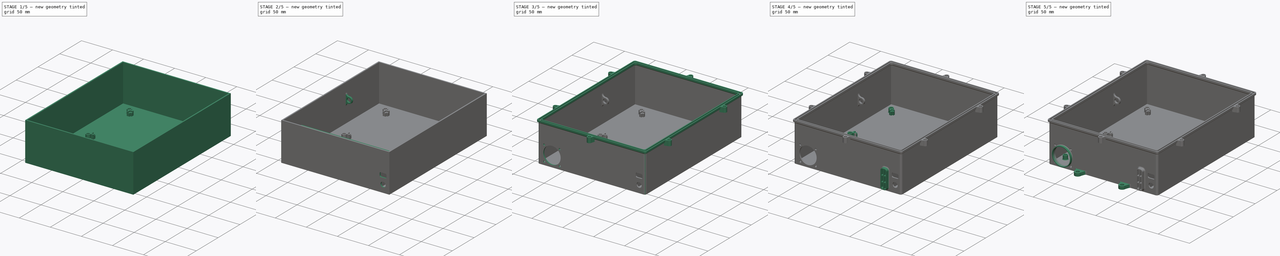
[diagram: build sequence overview — one tinted view per stage of 5, left to right]
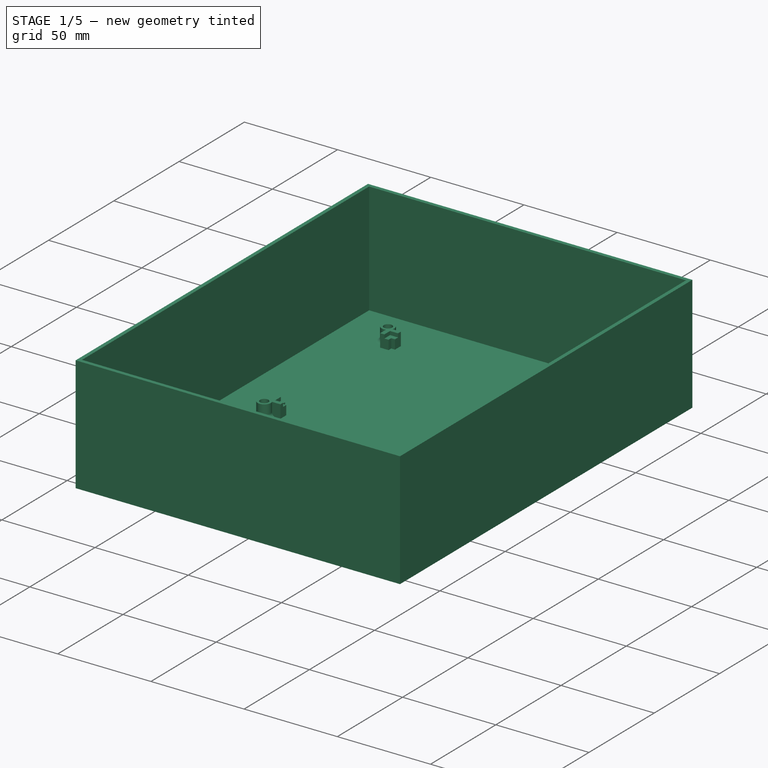
[diagram: stage 1 of 5 — iso view after this stage's code; geometry added in this stage tinted green]
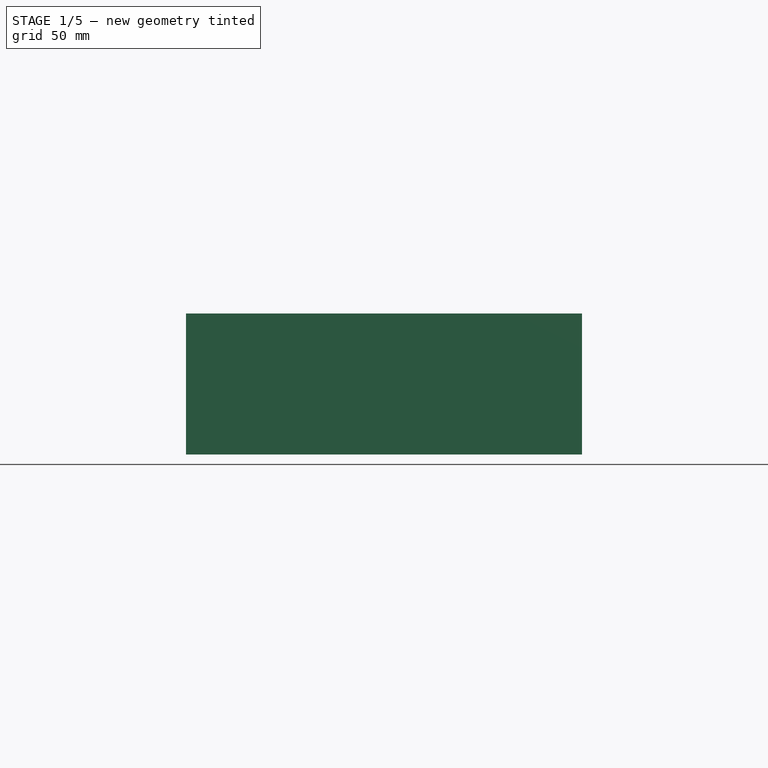
[diagram: stage 1 of 5 — front view after this stage's code; geometry added in this stage tinted green]
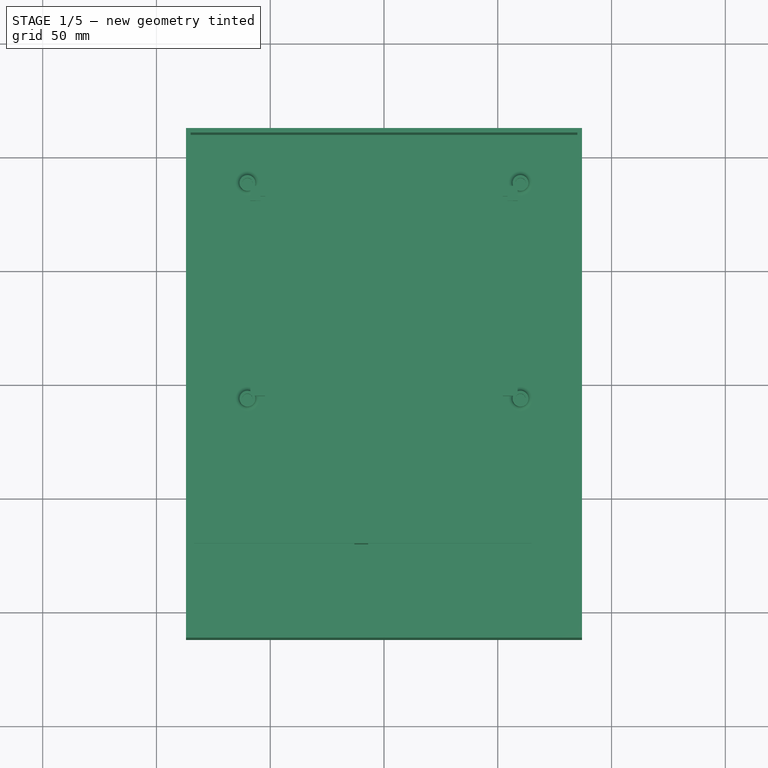
[diagram: stage 1 of 5 — top view after this stage's code; geometry added in this stage tinted green]
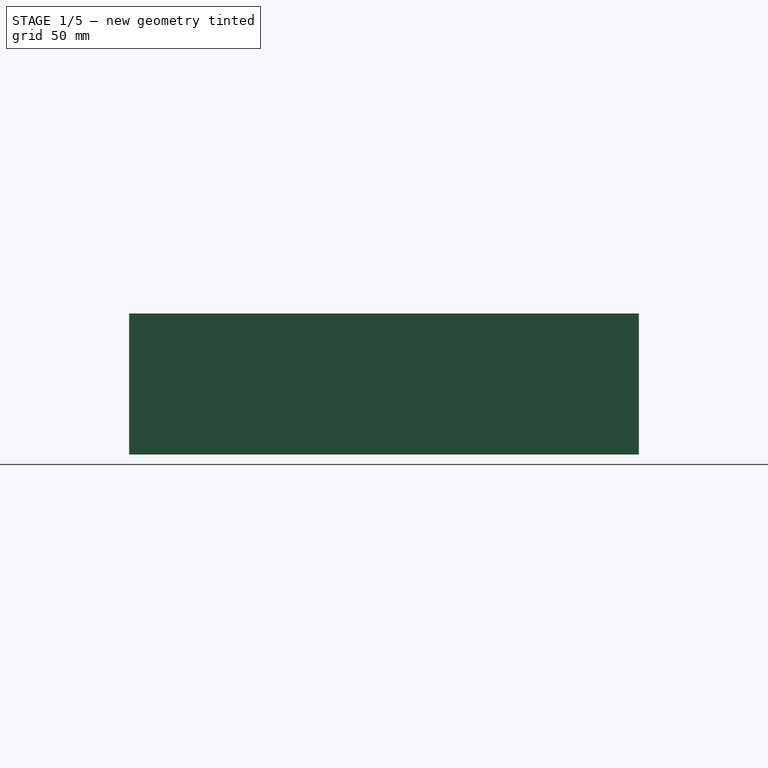
[diagram: stage 1 of 5 — right view after this stage's code; geometry added in this stage tinted green]
FCSTD DOCUMENT  (FreeCAD 0.21R33668 +26 (Git))
Label: Caixa
License: All rights reserved
LicenseURL: http://en.wikipedia.org/wiki/All_rights_reserved
objects: Sketcher::SketchObject×32, PartDesign::Pad×18, PartDesign::Pocket×14, PartDesign::Fillet×14, PartDesign::Chamfer×4, PartDesign::Body×1, TechDraw::DrawSVGTemplate×1, TechDraw::DrawViewPart×1, TechDraw::DrawPage×1
note: 133 computed .brp shape members not serialized (recipe doc carries the construction recipe); baked Part::Feature solids carry a one-line shape summary decoded from their .brp

FEATURE [Sketcher::SketchObject] Sketch
  FullyConstrained = true
  MapMode = 5
  Support = -> [XY_Plane]
  sketch-geometry (5):
    g0: LineSegment StartX=87 StartY=-112 StartZ=0 EndX=87 EndY=112 EndZ=0
    g1: LineSegment StartX=87 StartY=112 StartZ=0 EndX=-87 EndY=112 EndZ=0
    g2: LineSegment StartX=-87 StartY=112 StartZ=0 EndX=-87 EndY=-112 EndZ=0
    g3: LineSegment StartX=-87 StartY=-112 StartZ=0 EndX=87 EndY=-112 EndZ=0
    g4: GeomPoint X=0 Y=0 Z=0
  constraints (12):
    c: Coincident(g0,g1)
    c: Coincident(g1,g2)
    c: Coincident(g2,g3)
    c: Coincident(g3,g0)
    c: Horizontal(g1)
    c: Horizontal(g3)
    c: Vertical(g0)
    c: Vertical(g2)
    c: Symmetric(g1,g0,g4)
    c: Coincident(g4,g-1)
    c: DistanceX(g1,g1) = 174
    c: DistanceY(g2,g2) = 224
FEATURE [PartDesign::Pad] Pad
  Direction = (0,0,1)
  Length = 62
  Length2 = 10
  Profile = -> Sketch
  ReferenceAxis = -> Sketch [N_Axis]
  Type = 0
FEATURE [Sketcher::SketchObject] Sketch001
  ExternalGeometry = -> [Pad]
  FullyConstrained = true
  MapMode = 5
  Placement = pos=(0,0,62) rot=(0,0,1;0rad)
  Support = -> [Pad]
  sketch-geometry (5):
    g0: LineSegment StartX=85 StartY=-110 StartZ=0 EndX=85 EndY=110 EndZ=0
    g1: LineSegment StartX=85 StartY=110 StartZ=0 EndX=-85 EndY=110 EndZ=0
    g2: LineSegment StartX=-85 StartY=110 StartZ=0 EndX=-85 EndY=-110 EndZ=0
    g3: LineSegment StartX=-85 StartY=-110 StartZ=0 EndX=85 EndY=-110 EndZ=0
    g4: GeomPoint X=0 Y=0 Z=0
  constraints (12):
    c: Coincident(g0,g1)
    c: Coincident(g1,g2)
    c: Coincident(g2,g3)
    c: Coincident(g3,g0)
    c: Horizontal(g1)
    c: Horizontal(g3)
    c: Vertical(g0)
    c: Vertical(g2)
    c: Symmetric(g1,g0,g4)
    c: Coincident(g4,g-1)
    c: DistanceY(g1,g-3) = 2
    c: DistanceX(g-3,g1) = 2
FEATURE [PartDesign::Pocket] Pocket
  BaseFeature = -> Pad
  Direction = (0,0,-1)
  Length = 60
  Length2 = 5
  Profile = -> Sketch001
  ReferenceAxis = -> Sketch001 [N_Axis]
  Type = 0
FEATURE [Sketcher::SketchObject] Sketch002
  ExternalGeometry = -> [Pocket]
  FullyConstrained = true
  MapMode = 5
  Placement = pos=(0,0,2) rot=(0,0,1;0rad)
  Support = -> [Pocket]
  sketch-geometry (6):
    g0: LineSegment StartX=-85 StartY=-70 StartZ=0 EndX=-85 EndY=-68 EndZ=0
    g1: LineSegment StartX=-85 StartY=-68 StartZ=0 EndX=67 EndY=-68 EndZ=0
    g2: LineSegment StartX=67 StartY=-68 StartZ=0 EndX=67 EndY=-110 EndZ=0
    g3: LineSegment StartX=65 StartY=-110 StartZ=0 EndX=65 EndY=-70 EndZ=0
    g4: LineSegment StartX=65 StartY=-70 StartZ=0 EndX=-85 EndY=-70 EndZ=0
    g5: LineSegment StartX=65 StartY=-110 StartZ=0 EndX=67 EndY=-110 EndZ=0
  constraints (18):
    c: PointOnObject(g0,g-3)
    c: Vertical(g0)
    c: Coincident(g0,g1)
    c: Horizontal(g1)
    c: Coincident(g1,g2)
    c: PointOnObject(g2,g-4)
    c: Vertical(g2)
    c: PointOnObject(g3,g-4)
    c: Vertical(g3)
    c: Coincident(g3,g4)
    c: Coincident(g4,g0)
    c: Horizontal(g4)
    c: DistanceY(g-4,g0) = 40
    c: Coincident(g5,g3)
    c: Coincident(g5,g2)
    c: Equal(g0,g5)
    c: DistanceY(g0,g0) = 2
    c: DistanceX(g4,g4) = 150
FEATURE [PartDesign::Pad] Pad001
  BaseFeature = -> Pocket
  Direction = (0,0,1)
  Length = 30
  Length2 = 10
  Profile = -> Sketch002
  ReferenceAxis = -> Sketch002 [N_Axis]
  Type = 0
FEATURE [Sketcher::SketchObject] Sketch003
  ExternalGeometry = -> [Pad001]
  FullyConstrained = true
  MapMode = 5
  Placement = pos=(0,0,32) rot=(0,0,1;0rad)
  Support = -> [Pad001]
  sketch-geometry (8):
    g0: LineSegment StartX=-85 StartY=-68 StartZ=0 EndX=-13 EndY=-68 EndZ=0
    g1: LineSegment StartX=-13 StartY=-68 StartZ=0 EndX=-13 EndY=-70 EndZ=0
    g2: LineSegment StartX=-13 StartY=-70 StartZ=0 EndX=-85 EndY=-70 EndZ=0
    g3: LineSegment StartX=-85 StartY=-70 StartZ=0 EndX=-85 EndY=-68 EndZ=0
    g4: LineSegment StartX=-7 StartY=-68 StartZ=0 EndX=65 EndY=-68 EndZ=0
    g5: LineSegment StartX=65 StartY=-68 StartZ=0 EndX=65 EndY=-70 EndZ=0
    g6: LineSegment StartX=65 StartY=-70 StartZ=0 EndX=-7 EndY=-70 EndZ=0
    g7: LineSegment StartX=-7 StartY=-70 StartZ=0 EndX=-7 EndY=-68 EndZ=0
  constraints (22):
    c: Coincident(g0,g1)
    c: Coincident(g1,g2)
    c: Coincident(g2,g3)
    c: Coincident(g3,g0)
    c: Horizontal(g0)
    c: Horizontal(g2)
    c: Vertical(g1)
    c: Vertical(g3)
    c: PointOnObject(g1,g-4)
    c: Coincident(g4,g5)
    c: Coincident(g5,g6)
    c: Coincident(g6,g7)
    c: Coincident(g7,g4)
    c: Horizontal(g4)
    c: Horizontal(g6)
    c: Vertical(g5)
    c: Vertical(g7)
    c: PointOnObject(g4,g-3)
    c: Equal(g4,g0)
    c: DistanceX(g0,g0) = 72
    c: Coincident(g0,g-3)
    c: Coincident(g5,g-4)
FEATURE [PartDesign::Pocket] Pocket001
  BaseFeature = -> Pad001
  Direction = (0,0,-1)
  Length = 30
  Length2 = -4.5
  Profile = -> Sketch003
  ReferenceAxis = -> Sketch003 [N_Axis]
  Refine = true
  Type = 4
FEATURE [Sketcher::SketchObject] Sketch004
  ExternalGeometry = -> [Pocket001]
  FullyConstrained = true
  MapMode = 5
  Placement = pos=(0,0,2) rot=(0,0,1;0rad)
  Support = -> [Pocket001]
  sketch-geometry (42):
    g0: LineSegment StartX=-56.25 StartY=-2.3 StartZ=0 EndX=-56.25 EndY=85 EndZ=0
    g1: LineSegment StartX=-56.25 StartY=85 StartZ=0 EndX=56.25 EndY=85 EndZ=0
    g2: LineSegment StartX=56.25 StartY=85 StartZ=0 EndX=56.25 EndY=-2.3 EndZ=0
    g3: LineSegment StartX=56.25 StartY=-2.3 StartZ=0 EndX=-56.25 EndY=-2.3 EndZ=0
    g4: GeomPoint X=0 Y=41.35 Z=0
    g5: LineSegment StartX=60 StartY=-6.05 StartZ=0 EndX=60 EndY=88.75 EndZ=0
    g6: LineSegment StartX=60 StartY=88.75 StartZ=0 EndX=-60 EndY=88.75 EndZ=0
    g7: LineSegment StartX=-60 StartY=88.75 StartZ=0 EndX=-60 EndY=-6.05 EndZ=0
    g8: LineSegment StartX=-60 StartY=-6.05 StartZ=0 EndX=60 EndY=-6.05 EndZ=0
    g9: GeomPoint X=0 Y=41.35 Z=0
    g10: Circle CenterX=-60 CenterY=88.75 CenterZ=0 NormalX=0 NormalY=0 NormalZ=1 AngleXU=0 Radius=2.25
    g11: Circle CenterX=60 CenterY=88.75 CenterZ=0 NormalX=0 NormalY=0 NormalZ=1 AngleXU=0 Radius=2.25
    g12: Circle CenterX=60 CenterY=-6.05 CenterZ=0 NormalX=0 NormalY=0 NormalZ=1 AngleXU=0 Radius=2.25
    g13: Circle CenterX=-60 CenterY=-6.05 CenterZ=0 NormalX=0 NormalY=0 NormalZ=1 AngleXU=0 Radius=2.25
    g14: LineSegment StartX=-58.75 StartY=85.4808 StartZ=0 EndX=-58.75 EndY=80.9808 EndZ=0
    g15: LineSegment StartX=-58.75 StartY=80.9808 StartZ=0 EndX=-54.25 EndY=80.9808 EndZ=0
    g16: LineSegment StartX=-54.25 StartY=80.9808 StartZ=0 EndX=-54.25 EndY=83 EndZ=0
    g17: LineSegment StartX=-54.25 StartY=83 StartZ=0 EndX=-52.2308 EndY=83 EndZ=0
    g18: LineSegment StartX=-52.2308 StartY=83 StartZ=0 EndX=-52.2308 EndY=87.5 EndZ=0
    g19: LineSegment StartX=-52.2308 StartY=87.5 StartZ=0 EndX=-56.7308 EndY=87.5 EndZ=0
    g20: ArcOfCircle CenterX=-60 CenterY=88.75 CenterZ=0 NormalX=0 NormalY=0 NormalZ=1 AngleXU=0 Radius=3.5 StartAngle=5.91798 EndAngle=11.3608
    g21: LineSegment StartX=56.7308 StartY=87.5 StartZ=0 EndX=52.2308 EndY=87.5 EndZ=0
    g22: LineSegment StartX=52.2308 StartY=87.5 StartZ=0 EndX=52.2308 EndY=83 EndZ=0
    g23: LineSegment StartX=52.2308 StartY=83 StartZ=0 EndX=54.25 EndY=83 EndZ=0
    g24: LineSegment StartX=54.25 StartY=83 StartZ=0 EndX=54.25 EndY=80.9808 EndZ=0
    g25: LineSegment StartX=54.25 StartY=80.9808 StartZ=0 EndX=58.75 EndY=80.9808 EndZ=0
    g26: LineSegment StartX=58.75 StartY=80.9808 StartZ=0 EndX=58.75 EndY=85.4808 EndZ=0
    g27: LineSegment StartX=58.75 StartY=-2.78083 StartZ=0 EndX=58.75 EndY=1.71917 EndZ=0
    g28: LineSegment StartX=58.75 StartY=1.71917 StartZ=0 EndX=54.25 EndY=1.71917 EndZ=0
    g29: LineSegment StartX=54.25 StartY=1.71917 StartZ=0 EndX=54.25 EndY=-0.3 EndZ=0
    g30: LineSegment StartX=54.25 StartY=-0.3 StartZ=0 EndX=52.2308 EndY=-0.3 EndZ=0
    g31: LineSegment StartX=52.2308 StartY=-0.3 StartZ=0 EndX=52.2308 EndY=-4.8 EndZ=0
    g32: LineSegment StartX=-56.7308 StartY=-4.8 StartZ=0 EndX=-52.2308 EndY=-4.8 EndZ=0
    g33: LineSegment StartX=-52.2308 StartY=-4.8 StartZ=0 EndX=-52.2308 EndY=-0.3 EndZ=0
    g34: LineSegment StartX=-52.2308 StartY=-0.3 StartZ=0 EndX=-54.25 EndY=-0.3 EndZ=0
    g35: LineSegment StartX=-54.25 StartY=-0.3 StartZ=0 EndX=-54.25 EndY=1.71917 EndZ=0
    g36: LineSegment StartX=-54.25 StartY=1.71917 StartZ=0 EndX=-58.75 EndY=1.71917 EndZ=0
    g37: LineSegment StartX=-58.75 StartY=1.71917 StartZ=0 EndX=-58.75 EndY=-2.78083 EndZ=0
    g38: ArcOfCircle CenterX=60 CenterY=-6.05 CenterZ=0 NormalX=0 NormalY=0 NormalZ=1 AngleXU=0 Radius=3.5 StartAngle=2.77639 EndAngle=8.21919
    g39: ArcOfCircle CenterX=60 CenterY=88.75 CenterZ=0 NormalX=0 NormalY=0 NormalZ=1 AngleXU=0 Radius=3.5 StartAngle=4.34718 EndAngle=9.78999
    g40: ArcOfCircle CenterX=-60 CenterY=-6.05 CenterZ=0 NormalX=0 NormalY=0 NormalZ=1 AngleXU=0 Radius=3.5 StartAngle=1.20559 EndAngle=6.64839
    g41: LineSegment StartX=52.2308 StartY=-4.8 StartZ=0 EndX=56.7308 EndY=-4.8 EndZ=0
  constraints (117):
    c: Coincident(g0,g1)
    c: Coincident(g1,g2)
    c: Coincident(g2,g3)
    c: Coincident(g3,g0)
    c: Horizontal(g1)
    c: Horizontal(g3)
    c: Vertical(g0)
    c: Vertical(g2)
    c: Symmetric(g1,g0,g4)
    c: PointOnObject(g4,g-2)
    c: DistanceX(g1,g1) = 112.5
    c: DistanceY(g2,g2) = 87.3
    c: DistanceY(g1,g-3) = 25
    c: Coincident(g5,g6)
    c: Coincident(g6,g7)
    c: Coincident(g7,g8)
    c: Coincident(g8,g5)
    c: Horizontal(g6)
    c: Horizontal(g8)
    c: Vertical(g5)
    c: Vertical(g7)
    c: Symmetric(g6,g5,g9)
    c: Coincident(g9,g4)
    c: Coincident(g10,g6)
    c: Equal(g10,g13)
    c: Equal(g13,g11)
    c: Equal(g11,g12)
    c: Diameter(g10) = 4.5
    c: Vertical(g14)
    c: Coincident(g14,g15)
    c: Horizontal(g15)
    c: Coincident(g15,g16)
    c: Vertical(g16)
    c: Coincident(g16,g17)
    c: Horizontal(g17)
    c: Coincident(g17,g18)
    c: Coincident(g18,g19)
    c: Horizontal(g19)
    c: Equal(g15,g14)
    c: Equal(g14,g19)
    c: Vertical(g18)
    c: Equal(g17,g16)
    c: DistanceX(g15,g15) = 4.5
    c: Coincident(g20,g10)
    c: Coincident(g20,g19)
    c: Coincident(g20,g14)
    c: DistanceX(g0,g16) = 2
    c: DistanceY(g16,g0) = 2
    c: Diameter(g20) = 7
    c: Coincident(g21,g22)
    c: Vertical(g22)
    c: Coincident(g22,g23)
    c: Horizontal(g23)
    c: Coincident(g23,g24)
    c: Vertical(g24)
    c: Coincident(g24,g25)
    c: Horizontal(g25)
    c: Coincident(g25,g26)
    c: Coincident(g27,g28)
    c: Horizontal(g28)
    c: Coincident(g28,g29)
    c: Vertical(g29)
    c: Coincident(g29,g30)
    c: Horizontal(g30)
    c: Coincident(g30,g31)
    c: Vertical(g31)
    c: Coincident(g32,g33)
    c: Vertical(g33)
    c: Coincident(g33,g34)
    c: Horizontal(g34)
    c: Coincident(g34,g35)
    c: Vertical(g35)
    c: Coincident(g35,g36)
    c: Horizontal(g36)
    c: Coincident(g36,g37)
    c: Coincident(g38,g12)
    c: Coincident(g38,g27)
    c: Coincident(g12,g5)
    c: Coincident(g13,g7)
    c: Coincident(g11,g5)
    c: Equal(g23,g24)
    c: Equal(g22,g25)
    c: Equal(g18,g22)
    c: Equal(g23,g17)
    c: Equal(g18,g15)
    c: DistanceX(g6,g6) = 120
    c: Vertical(g37)
    c: Horizontal(g32)
    c: DistanceX(g24,g1) = 2
    c: Vertical(g26)
    c: Horizontal(g21)
    c: DistanceY(g23,g1) = 2
    c: Vertical(g27)
    c: Coincident(g39,g11)
    c: Coincident(g39,g21)
    c: Coincident(g39,g26)
    c: Coincident(g40,g13)
    c: Coincident(g40,g37)
    c: Coincident(g40,g32)
    c: Coincident(g41,g31)
    c: Horizontal(g41)
    c: Coincident(g38,g41)
    c: Equal(g40,g38)
    c: Equal(g38,g39)
    c: Equal(g39,g20)
    c: Equal(g15,g36)
    c: Equal(g36,g33)
    c: Equal(g33,g31)
    c: Equal(g31,g28)
    c: DistanceX(g0,g34) = 2
    c: DistanceY(g0,g34) = 2
    c: Equal(g30,g29)
    c: Equal(g29,g17)
    c: Equal(g30,g34)
    c: Equal(g34,g35)
    c: DistanceX(g29,g2) = 2
    c: DistanceY(g2,g29) = 2
FEATURE [PartDesign::Pad] Pad002
  BaseFeature = -> Pocket001
  Direction = (0,0,1)
  Length = 7
  Length2 = 10
  Profile = -> Sketch004
  ReferenceAxis = -> Sketch004 [N_Axis]
  Refine = true
  Type = 0
FEATURE [Sketcher::SketchObject] Sketch005
  ExternalGeometry = -> [Pad002]
  FullyConstrained = true
  MapMode = 5
  Placement = pos=(0,0,9) rot=(0,0,1;0rad)
  Support = -> [Pad002]
  sketch-geometry (6):
    g0: GeomPoint X=-1.7e-15 Y=41.35 Z=0
    g1: LineSegment StartX=56.5 StartY=-2.65 StartZ=0 EndX=56.5 EndY=85.35 EndZ=0
    g2: LineSegment StartX=56.5 StartY=85.35 StartZ=0 EndX=-56.5 EndY=85.35 EndZ=0
    g3: LineSegment StartX=-56.5 StartY=85.35 StartZ=0 EndX=-56.5 EndY=-2.65 EndZ=0
    g4: LineSegment StartX=-56.5 StartY=-2.65 StartZ=0 EndX=56.5 EndY=-2.65 EndZ=0
    g5: GeomPoint X=-1.7e-15 Y=41.35 Z=0
  constraints (13):
    c: Symmetric(g-4,g-3,g0)
    c: Coincident(g1,g2)
    c: Coincident(g2,g3)
    c: Coincident(g3,g4)
    c: Coincident(g4,g1)
    c: Horizontal(g2)
    c: Horizontal(g4)
    c: Vertical(g1)
    c: Vertical(g3)
    c: Symmetric(g2,g1,g5)
    c: Coincident(g5,g0)
    c: DistanceX(g2,g2) = 113
    c: DistanceY(g1,g1) = 88
FEATURE [PartDesign::Pocket] Pocket002
  BaseFeature = -> Pad002
  Direction = (0,0,-1)
  Length = 2
  Length2 = 5
  Profile = -> Sketch005
  ReferenceAxis = -> Sketch005 [N_Axis]
  Type = 0
FEATURE [PartDesign::Fillet] Fillet
  Base = -> Pocket002 [Edge51,Edge44,Edge30,Edge37]
  BaseFeature = -> Pocket002
  Radius = 2
  Refine = true
  SupportTransform = false
  UseAllEdges = false
FEATURE [Sketcher::SketchObject] Sketch006
  ExternalGeometry = -> [Fillet]
  FullyConstrained = true
  MapMode = 5
  Placement = pos=(0,0,32) rot=(0,0,1;0rad)
  Support = -> [Fillet]
  sketch-geometry (6):
    g0: LineSegment StartX=-85 StartY=-68 StartZ=0 EndX=-85 EndY=-66.5 EndZ=0
    g1: LineSegment StartX=-85 StartY=-66.5 StartZ=0 EndX=68.5 EndY=-66.5 EndZ=0
    g2: LineSegment StartX=68.5 StartY=-66.5 StartZ=0 EndX=68.5 EndY=-110 EndZ=0
    g3: LineSegment StartX=68.5 StartY=-110 StartZ=0 EndX=67 EndY=-110 EndZ=0
    g4: LineSegment StartX=67 StartY=-110 StartZ=0 EndX=67 EndY=-68 EndZ=0
    g5: LineSegment StartX=67 StartY=-68 StartZ=0 EndX=-85 EndY=-68 EndZ=0
  constraints (16):
    c: Vertical(g0)
    c: Coincident(g0,g1)
    c: Horizontal(g1)
    c: Coincident(g1,g2)
    c: Vertical(g2)
    c: Coincident(g2,g3)
    c: Horizontal(g3)
    c: Coincident(g3,g4)
    c: Vertical(g4)
    c: Coincident(g4,g5)
    c: Coincident(g5,g0)
    c: Horizontal(g5)
    c: Equal(g0,g3)
    c: DistanceX(g3,g3) = 1.5
    c: Coincident(g3,g-4)
    c: Coincident(g0,g-3)
FEATURE [PartDesign::Pad] Pad003
  BaseFeature = -> Fillet
  Direction = (0,0,1)
  Length = 2
  Length2 = 1
  Profile = -> Sketch006
  ReferenceAxis = -> Sketch006 [N_Axis]
  Type = 4
FEATURE [Sketcher::SketchObject] Sketch007
  ExternalGeometry = -> [Pad003]
  FullyConstrained = true
  MapMode = 5
  Placement = pos=(0,0,32) rot=(0,0,1;0rad)
  Support = -> [Pad003]
  sketch-geometry (6):
    g0: LineSegment StartX=-85 StartY=-70 StartZ=0 EndX=-83.5 EndY=-70 EndZ=0
    g1: LineSegment StartX=-83.5 StartY=-70 StartZ=0 EndX=-83.5 EndY=-108.5 EndZ=0
    g2: LineSegment StartX=-83.5 StartY=-108.5 StartZ=0 EndX=65 EndY=-108.5 EndZ=0
    g3: LineSegment StartX=65 StartY=-108.5 StartZ=0 EndX=65 EndY=-110 EndZ=0
    g4: LineSegment StartX=65 StartY=-110 StartZ=0 EndX=-85 EndY=-110 EndZ=0
    g5: LineSegment StartX=-85 StartY=-110 StartZ=0 EndX=-85 EndY=-70 EndZ=0
  constraints (16):
    c: Horizontal(g0)
    c: Coincident(g0,g1)
    c: Vertical(g1)
    c: Coincident(g1,g2)
    c: Horizontal(g2)
    c: Coincident(g2,g3)
    c: Vertical(g3)
    c: Coincident(g3,g4)
    c: Horizontal(g4)
    c: Coincident(g4,g5)
    c: Coincident(g5,g0)
    c: Vertical(g5)
    c: Equal(g0,g3)
    c: DistanceX(g0,g0) = 1.5
    c: Coincident(g0,g-6)
    c: Coincident(g3,g-3)
FEATURE [PartDesign::Pad] Pad004
  BaseFeature = -> Pad003
  Direction = (0,0,1)
  Length = 2
  Length2 = 10
  Profile = -> Sketch007
  ReferenceAxis = -> Sketch007 [N_Axis]
  Refine = true
  Reversed = true
  Type = 0
FEATURE [PartDesign::Chamfer] Chamfer
  Angle = 45
  Base = -> Pad004 [Edge99,Edge90,Edge79,Edge70]
  BaseFeature = -> Pad004
  ChamferType = 0
  FlipDirection = false
  Refine = true
  Size = 1.49
  Size2 = 1
  SupportTransform = false
  UseAllEdges = false
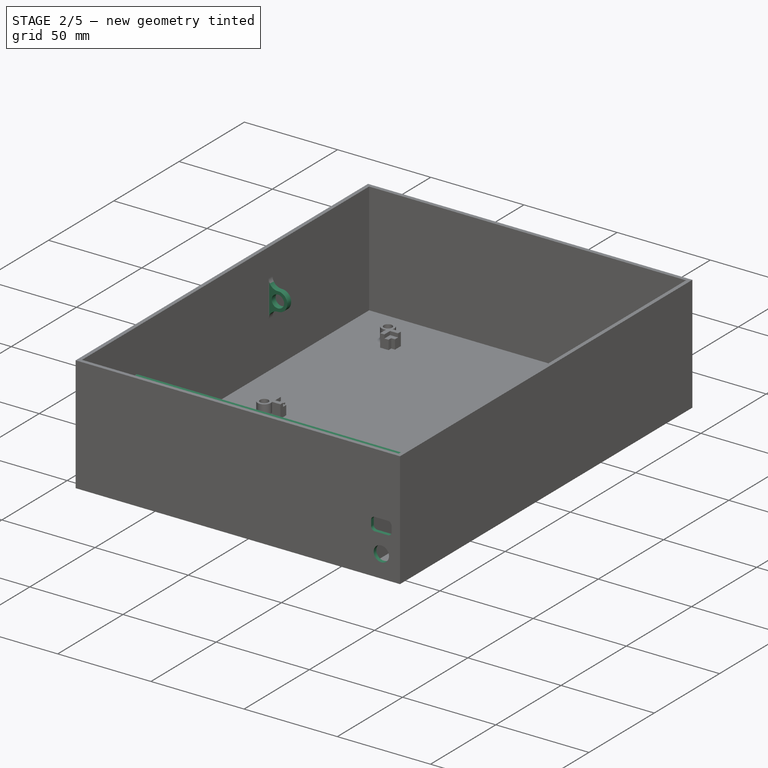
[diagram: stage 2 of 5 — iso view after this stage's code; geometry added in this stage tinted green]
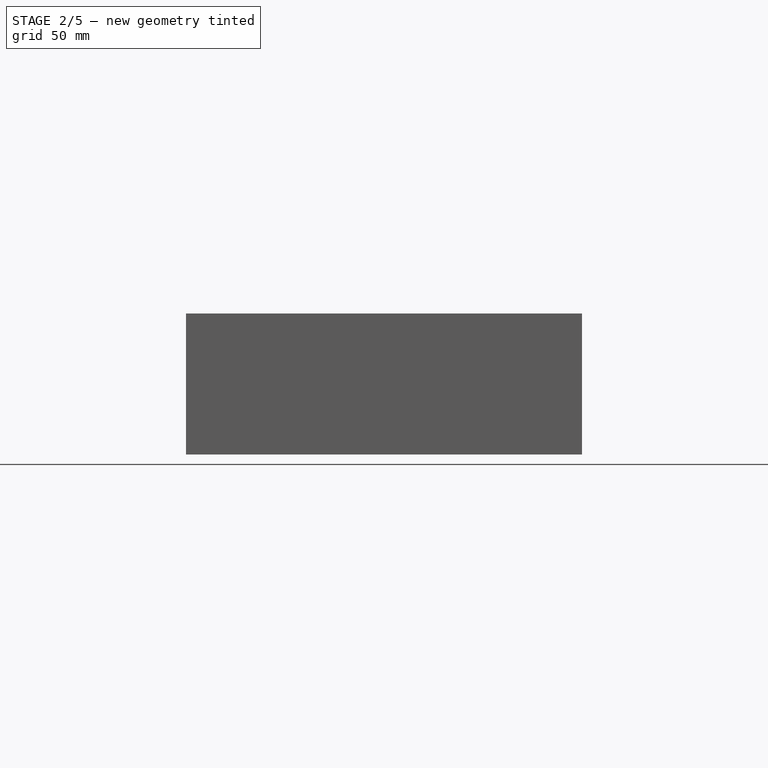
[diagram: stage 2 of 5 — front view after this stage's code; geometry added in this stage tinted green]
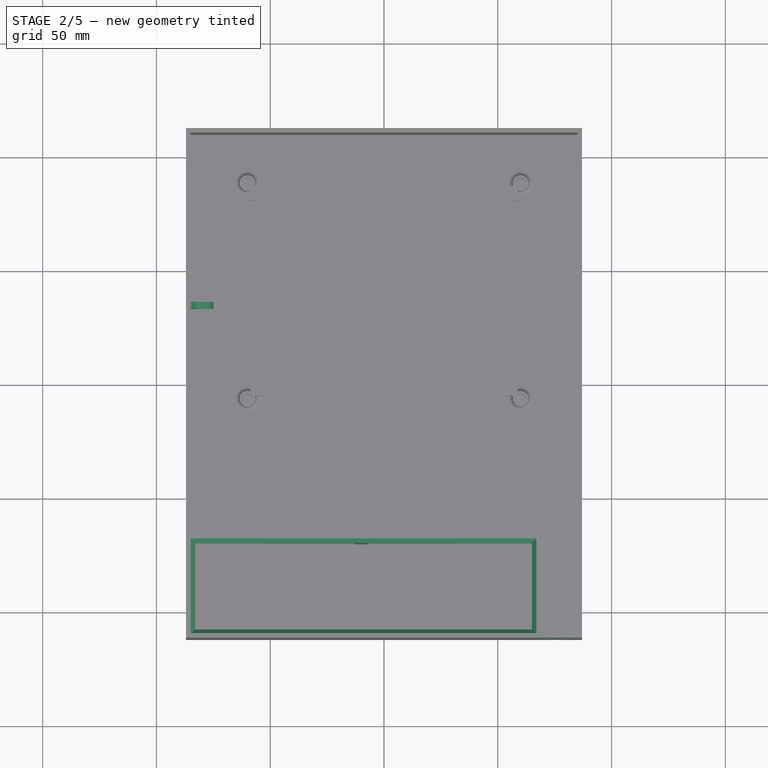
[diagram: stage 2 of 5 — top view after this stage's code; geometry added in this stage tinted green]
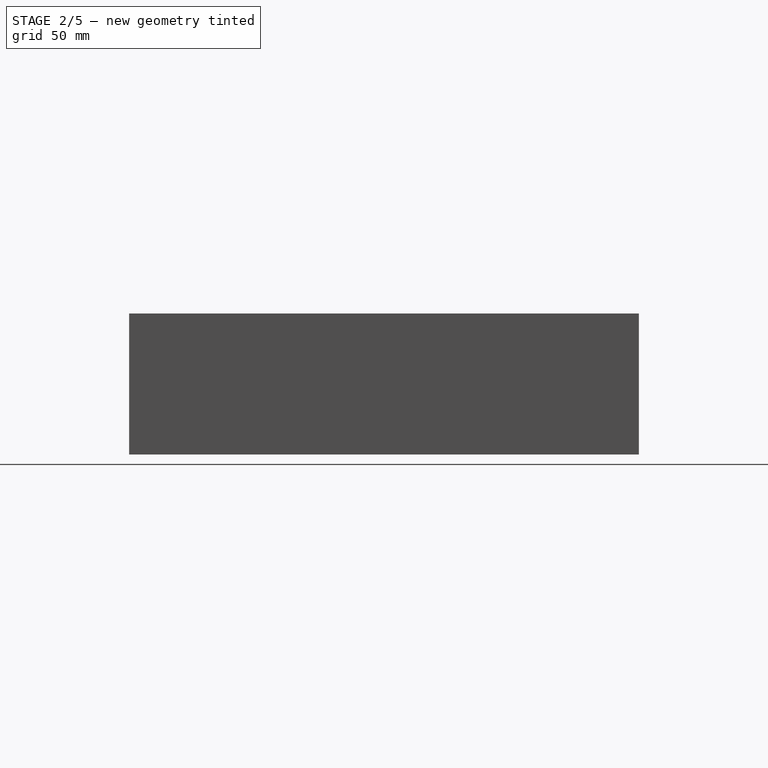
[diagram: stage 2 of 5 — right view after this stage's code; geometry added in this stage tinted green]
FEATURE [Sketcher::SketchObject] Sketch008
  ExternalGeometry = -> [Chamfer]
  FullyConstrained = true
  MapMode = 5
  Placement = pos=(0,0,62) rot=(0,0,1;0rad)
  Support = -> [Chamfer]
  sketch-geometry (6):
    g0: LineSegment StartX=-58.75 StartY=1.71917 StartZ=0 EndX=-85 EndY=1.71917 EndZ=0
    g1: LineSegment StartX=-58.75 StartY=80.9808 StartZ=0 EndX=-85 EndY=80.9808 EndZ=0
    g2: LineSegment StartX=-85 StartY=35.9808 StartZ=0 EndX=-75 EndY=35.9808 EndZ=0
    g3: LineSegment StartX=-75 StartY=35.9808 StartZ=0 EndX=-75 EndY=32.9808 EndZ=0
    g4: LineSegment StartX=-75 StartY=32.9808 StartZ=0 EndX=-85 EndY=32.9808 EndZ=0
    g5: LineSegment StartX=-85 StartY=32.9808 StartZ=0 EndX=-85 EndY=35.9808 EndZ=0
  constraints (18):
    c: Coincident(g0,g-5)
    c: PointOnObject(g0,g-3)
    c: Horizontal(g0)
    c: Coincident(g1,g-4)
    c: PointOnObject(g1,g-3)
    c: Horizontal(g1)
    c: Coincident(g2,g3)
    c: Coincident(g3,g4)
    c: Coincident(g4,g5)
    c: Coincident(g5,g2)
    c: Horizontal(g2)
    c: Horizontal(g4)
    c: Vertical(g3)
    c: Vertical(g5)
    c: PointOnObject(g2,g-3)
    c: DistanceY(g3,g3) = 3
    c: DistanceX(g2,g2) = 10
    c: DistanceY(g2,g1) = 45
FEATURE [PartDesign::Pad] Pad005
  BaseFeature = -> Chamfer
  Direction = (0,0,1)
  Length = 30
  Length2 = -20
  Profile = -> Sketch008
  ReferenceAxis = -> Sketch008 [N_Axis]
  Reversed = true
  Type = 4
FEATURE [Sketcher::SketchObject] Sketch009
  ExternalGeometry = -> [Pad005]
  FullyConstrained = true
  MapMode = 5
  Placement = pos=(0,32.9808,0) rot=(1,0,0;1.5708rad)
  Support = -> [Pad005]
  sketch-geometry (1):
    g0: Circle CenterX=-80 CenterY=37 CenterZ=0 NormalX=0 NormalY=0 NormalZ=1 AngleXU=0 Radius=3.35
  constraints (2):
    c: Symmetric(g-3,g-4,g0)
    c: Diameter(g0) = 6.7
FEATURE [PartDesign::Pocket] Pocket003
  BaseFeature = -> Pad005
  Direction = (0,1,-2e-16)
  Length = 5
  Length2 = 5
  Profile = -> Sketch009
  ReferenceAxis = -> Sketch009 [N_Axis]
  Type = 0
FEATURE [PartDesign::Fillet] Fillet001
  Base = -> Pocket003 [Edge210,Edge215,Edge86,Edge84]
  BaseFeature = -> Pocket003
  Radius = 4.9
  SupportTransform = false
  UseAllEdges = false
FEATURE [Sketcher::SketchObject] Sketch010
  ExternalGeometry = -> [Fillet001]
  FullyConstrained = true
  MapMode = 5
  Placement = pos=(0,0,32) rot=(0,0,1;0rad)
  Support = -> [Fillet001]
  sketch-geometry (4):
    g0: LineSegment StartX=65 StartY=-70 StartZ=0 EndX=-85 EndY=-70 EndZ=0
    g1: LineSegment StartX=-85 StartY=-70 StartZ=0 EndX=-85 EndY=-110 EndZ=0
    g2: LineSegment StartX=-85 StartY=-110 StartZ=0 EndX=65 EndY=-110 EndZ=0
    g3: LineSegment StartX=65 StartY=-110 StartZ=0 EndX=65 EndY=-70 EndZ=0
  constraints (10):
    c: Coincident(g0,g1)
    c: Coincident(g1,g2)
    c: Coincident(g2,g3)
    c: Coincident(g3,g0)
    c: Horizontal(g0)
    c: Horizontal(g2)
    c: Vertical(g1)
    c: Vertical(g3)
    c: Coincident(g0,g-6)
    c: Coincident(g1,g-4)
FEATURE [PartDesign::Pocket] Pocket004
  BaseFeature = -> Fillet001
  Direction = (0,0,-1)
  Length = 7
  Length2 = 5
  Profile = -> Sketch010
  ReferenceAxis = -> Sketch010 [N_Axis]
  Refine = true
  Type = 0
FEATURE [Sketcher::SketchObject] Sketch011
  ExternalGeometry = -> [Pocket004]
  FullyConstrained = true
  MapMode = 5
  Placement = pos=(0,0,34) rot=(0,0,1;0rad)
  Support = -> [Pocket004]
  sketch-geometry (6):
    g0: LineSegment StartX=-85 StartY=-66.5 StartZ=0 EndX=68.5 EndY=-66.5 EndZ=0
    g1: LineSegment StartX=68.5 StartY=-66.5 StartZ=0 EndX=68.5 EndY=-110 EndZ=0
    g2: LineSegment StartX=68.5 StartY=-110 StartZ=0 EndX=67 EndY=-110 EndZ=0
    g3: LineSegment StartX=67 StartY=-110 StartZ=0 EndX=67 EndY=-68 EndZ=0
    g4: LineSegment StartX=67 StartY=-68 StartZ=0 EndX=-85 EndY=-68 EndZ=0
    g5: LineSegment StartX=-85 StartY=-68 StartZ=0 EndX=-85 EndY=-66.5 EndZ=0
  constraints (12):
    c: Coincident(g-3,g0)
    c: Coincident(g0,g-6)
    c: Coincident(g0,g1)
    c: Coincident(g1,g-6)
    c: Coincident(g1,g2)
    c: Coincident(g2,g-5)
    c: Coincident(g2,g3)
    c: Coincident(g3,g-5)
    c: Coincident(g3,g4)
    c: Coincident(g4,g-4)
    c: Coincident(g4,g5)
    c: Coincident(g5,g0)
FEATURE [PartDesign::Pocket] Pocket005
  BaseFeature = -> Pocket004
  Direction = (0,0,-1)
  Length = 5
  Length2 = 5
  Profile = -> Sketch011
  ReferenceAxis = -> Sketch011 [N_Axis]
  Refine = true
  Type = 0
FEATURE [Sketcher::SketchObject] Sketch012
  ExternalGeometry = -> [Pocket005]
  FullyConstrained = true
  MapMode = 5
  Placement = pos=(0,0,32) rot=(0,0,1;0rad)
  Support = -> [Pocket005]
  sketch-geometry (6):
    g0: LineSegment StartX=65 StartY=-70 StartZ=0 EndX=65 EndY=-110 EndZ=0
    g1: LineSegment StartX=65 StartY=-110 StartZ=0 EndX=67 EndY=-110 EndZ=0
    g2: LineSegment StartX=67 StartY=-110 StartZ=0 EndX=67 EndY=-68 EndZ=0
    g3: LineSegment StartX=67 StartY=-68 StartZ=0 EndX=-85 EndY=-68 EndZ=0
    g4: LineSegment StartX=-85 StartY=-68 StartZ=0 EndX=-85 EndY=-70 EndZ=0
    g5: LineSegment StartX=-85 StartY=-70 StartZ=0 EndX=65 EndY=-70 EndZ=0
  constraints (12):
    c: Coincident(g-6,g0)
    c: Coincident(g0,g-6)
    c: Coincident(g0,g1)
    c: Coincident(g1,g-5)
    c: Coincident(g1,g2)
    c: Coincident(g2,g-5)
    c: Coincident(g2,g3)
    c: Coincident(g3,g-3)
    c: Coincident(g3,g4)
    c: Coincident(g4,g-4)
    c: Coincident(g4,g5)
    c: Coincident(g5,g0)
FEATURE [PartDesign::Pad] Pad006
  BaseFeature = -> Pocket005
  Direction = (0,0,1)
  Length = 7
  Length2 = 10
  Profile = -> Sketch012
  ReferenceAxis = -> Sketch012 [N_Axis]
  Type = 0
FEATURE [Sketcher::SketchObject] Sketch013
  ExternalGeometry = -> [Pad006]
  FullyConstrained = true
  MapMode = 5
  Placement = pos=(0,0,39) rot=(0,0,1;0rad)
  Support = -> [Pad006]
  sketch-geometry (6):
    g0: LineSegment StartX=-85 StartY=-70 StartZ=0 EndX=-83 EndY=-70 EndZ=0
    g1: LineSegment StartX=-83 StartY=-70 StartZ=0 EndX=-83 EndY=-108 EndZ=0
    g2: LineSegment StartX=-83 StartY=-108 StartZ=0 EndX=65 EndY=-108 EndZ=0
    g3: LineSegment StartX=65 StartY=-108 StartZ=0 EndX=65 EndY=-110 EndZ=0
    g4: LineSegment StartX=65 StartY=-110 StartZ=0 EndX=-85 EndY=-110 EndZ=0
    g5: LineSegment StartX=-85 StartY=-110 StartZ=0 EndX=-85 EndY=-70 EndZ=0
  constraints (16):
    c: Horizontal(g0)
    c: Coincident(g0,g1)
    c: Coincident(g1,g2)
    c: Horizontal(g2)
    c: Coincident(g2,g3)
    c: Coincident(g3,g4)
    c: Horizontal(g4)
    c: Coincident(g4,g5)
    c: Coincident(g5,g0)
    c: Vertical(g5)
    c: Vertical(g1)
    c: Vertical(g3)
    c: Equal(g3,g0)
    c: DistanceX(g0,g0) = 2
    c: Coincident(g0,g-3)
    c: Coincident(g-4,g3)
FEATURE [PartDesign::Pad] Pad007
  BaseFeature = -> Pad006
  Direction = (0,0,1)
  Length = 2
  Length2 = 10
  Profile = -> Sketch013
  ReferenceAxis = -> Sketch013 [N_Axis]
  Refine = true
  Reversed = true
  Type = 0
FEATURE [PartDesign::Chamfer] Chamfer001
  Angle = 45
  Base = -> Pad007 [Edge68,Edge234,Edge11,Edge237,Edge184,Edge50]
  BaseFeature = -> Pad007
  ChamferType = 0
  FlipDirection = false
  Size = 1.9
  Size2 = 1
  SupportTransform = false
  UseAllEdges = false
FEATURE [Sketcher::SketchObject] Sketch014
  ExternalGeometry = -> [Chamfer001]
  FullyConstrained = true
  MapMode = 5
  Placement = pos=(0,-112,0) rot=(1,0,0;1.5708rad)
  Support = -> [Chamfer001]
  sketch-geometry (11):
    g0: LineSegment StartX=67 StartY=39 StartZ=0 EndX=87 EndY=39 EndZ=0
    g1: LineSegment StartX=87 StartY=39 StartZ=0 EndX=87 EndY=0 EndZ=0
    g2: LineSegment StartX=87 StartY=0 StartZ=0 EndX=67 EndY=0 EndZ=0
    g3: LineSegment StartX=67 StartY=0 StartZ=0 EndX=67 EndY=39 EndZ=0
    g4: LineSegment StartX=71.5 StartY=29 StartZ=0 EndX=82.5 EndY=29 EndZ=0
    g5: LineSegment StartX=82.5 StartY=29 StartZ=0 EndX=82.5 EndY=22 EndZ=0
    g6: LineSegment StartX=82.5 StartY=22 StartZ=0 EndX=71.5 EndY=22 EndZ=0
    g7: LineSegment StartX=71.5 StartY=22 StartZ=0 EndX=71.5 EndY=29 EndZ=0
    g8: LineSegment StartX=77 StartY=39 StartZ=0 EndX=77 EndY=0 EndZ=0
    g9: GeomPoint X=77 Y=29 Z=0
    g10: Circle CenterX=77 CenterY=12 CenterZ=0 NormalX=0 NormalY=0 NormalZ=1 AngleXU=0 Radius=4.1
  constraints (29):
    c: Coincident(g0,g1)
    c: Coincident(g1,g2)
    c: Coincident(g2,g3)
    c: Coincident(g3,g0)
    c: Horizontal(g0)
    c: Horizontal(g2)
    c: Vertical(g1)
    c: Vertical(g3)
    c: Coincident(g0,g-3)
    c: Coincident(g1,g-4)
    c: Coincident(g4,g5)
    c: Coincident(g5,g6)
    c: Coincident(g6,g7)
    c: Coincident(g7,g4)
    c: Horizontal(g4)
    c: Horizontal(g6)
    c: Vertical(g5)
    c: Vertical(g7)
    c: DistanceX(g4,g4) = 11
    c: DistanceY(g7,g7) = 7
    c: PointOnObject(g8,g2)
    c: Vertical(g8)
    c: Symmetric(g0,g0,g8)
    c: PointOnObject(g9,g8)
    c: Symmetric(g4,g4,g9)
    c: DistanceY(g9,g8) = 10
    c: PointOnObject(g10,g8)
    c: Diameter(g10) = 8.2
    c: DistanceY(g10,g5) = 10
FEATURE [PartDesign::Pocket] Pocket006
  BaseFeature = -> Chamfer001
  Direction = (0,1,-2e-16)
  Length = 5
  Length2 = 5
  Profile = -> Sketch014
  ReferenceAxis = -> Sketch014 [N_Axis]
  Type = 0
FEATURE [PartDesign::Fillet] Fillet002
  Base = -> Pocket006 [Edge224,Edge226,Edge225,Edge223]
  BaseFeature = -> Pocket006
  Radius = 2
  SupportTransform = false
  UseAllEdges = false
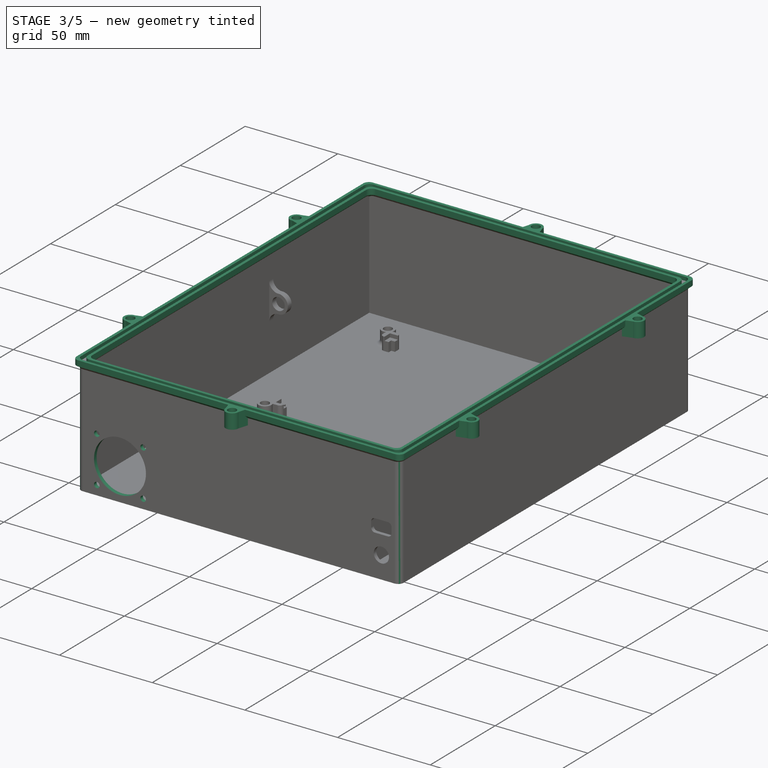
[diagram: stage 3 of 5 — iso view after this stage's code; geometry added in this stage tinted green]
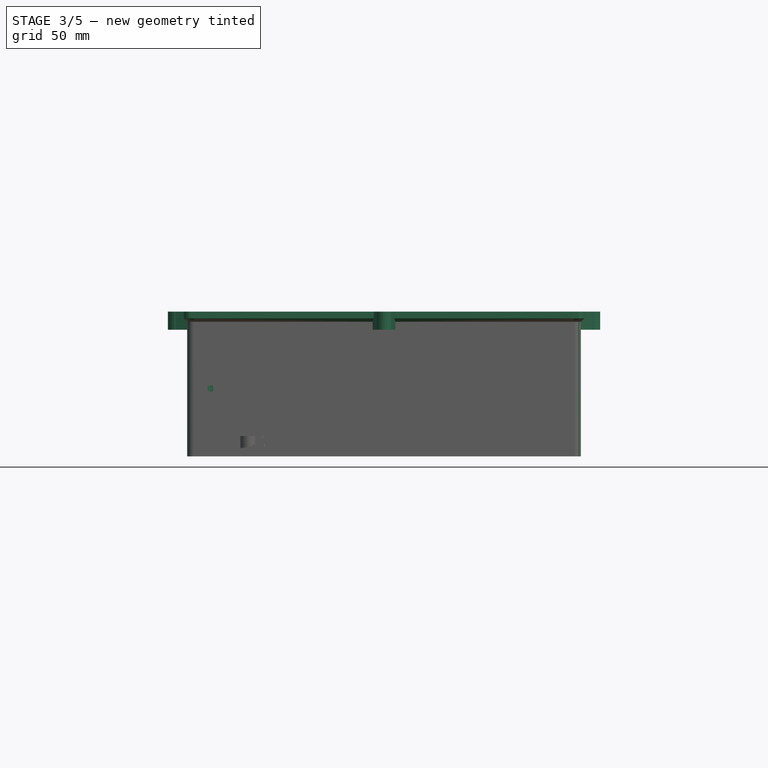
[diagram: stage 3 of 5 — front view after this stage's code; geometry added in this stage tinted green]
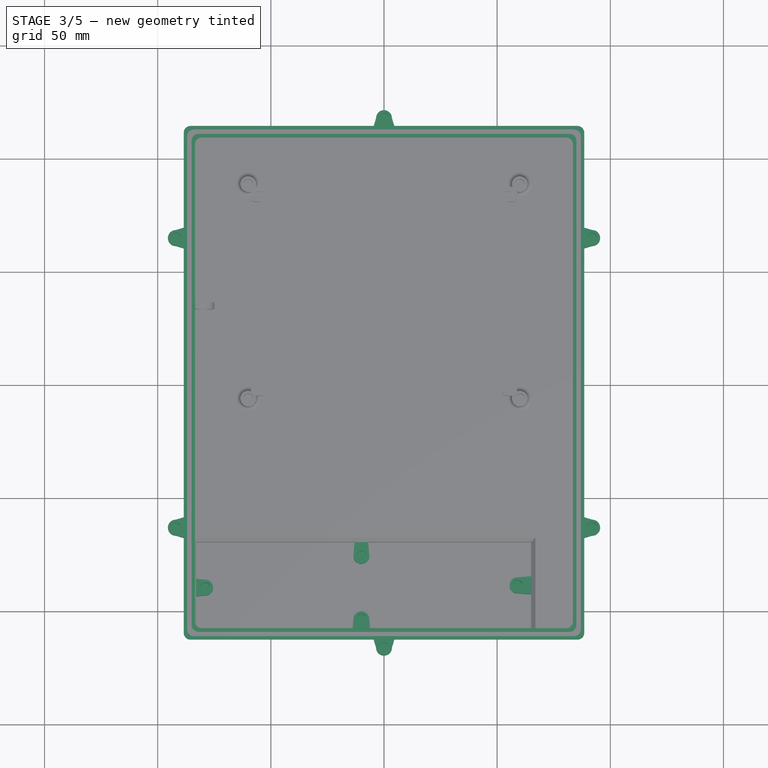
[diagram: stage 3 of 5 — top view after this stage's code; geometry added in this stage tinted green]
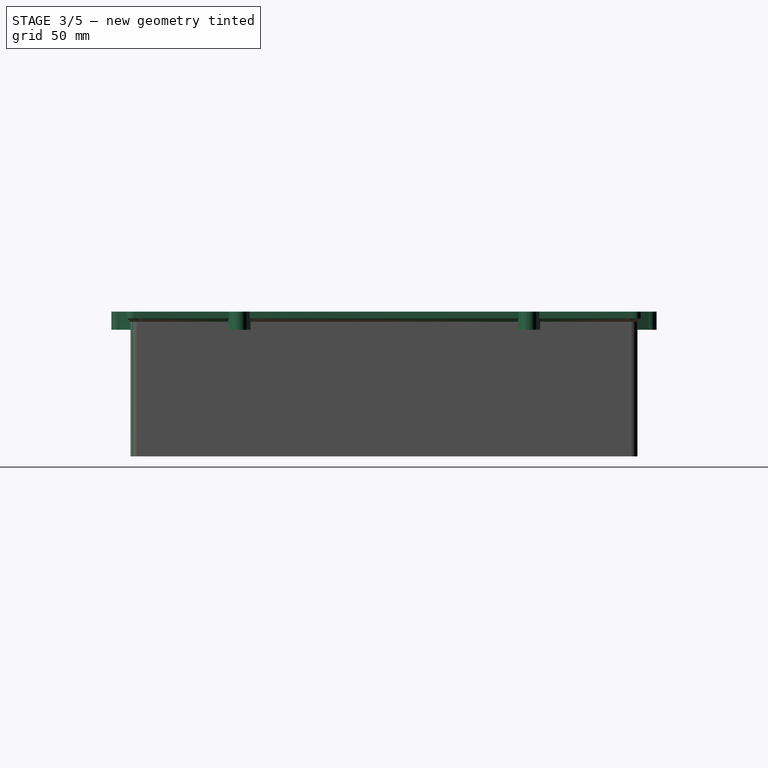
[diagram: stage 3 of 5 — right view after this stage's code; geometry added in this stage tinted green]
FEATURE [Sketcher::SketchObject] Sketch015
  ExternalGeometry = -> [Fillet002]
  FullyConstrained = true
  MapMode = 5
  Placement = pos=(0,0,62) rot=(0,0,1;0rad)
  Support = -> [Fillet002]
  sketch-geometry (16):
    g0: LineSegment StartX=-85 StartY=110 StartZ=0 EndX=85 EndY=110 EndZ=0
    g1: LineSegment StartX=85 StartY=110 StartZ=0 EndX=85 EndY=-110 EndZ=0
    g2: LineSegment StartX=85 StartY=-110 StartZ=0 EndX=-85 EndY=-110 EndZ=0
    g3: LineSegment StartX=-85 StartY=-110 StartZ=0 EndX=-85 EndY=110 EndZ=0
    g4: LineSegment StartX=87 StartY=-112 StartZ=0 EndX=-87 EndY=-112 EndZ=0
    g5: LineSegment StartX=-87 StartY=-112 StartZ=0 EndX=-87 EndY=112 EndZ=0
    g6: LineSegment StartX=-87 StartY=112 StartZ=0 EndX=87 EndY=112 EndZ=0
    g7: LineSegment StartX=87 StartY=112 StartZ=0 EndX=87 EndY=-112 EndZ=0
    g8: LineSegment StartX=-88.5 StartY=113.5 StartZ=0 EndX=88.5 EndY=113.5 EndZ=0
    g9: LineSegment StartX=88.5 StartY=113.5 StartZ=0 EndX=88.5 EndY=-113.5 EndZ=0
    g10: LineSegment StartX=88.5 StartY=-113.5 StartZ=0 EndX=-88.5 EndY=-113.5 EndZ=0
    g11: LineSegment StartX=-88.5 StartY=-113.5 StartZ=0 EndX=-88.5 EndY=113.5 EndZ=0
    g12: LineSegment StartX=-83.5 StartY=-108.5 StartZ=0 EndX=83.5 EndY=-108.5 EndZ=0
    g13: LineSegment StartX=83.5 StartY=-108.5 StartZ=0 EndX=83.5 EndY=108.5 EndZ=0
    g14: LineSegment StartX=83.5 StartY=108.5 StartZ=0 EndX=-83.5 EndY=108.5 EndZ=0
    g15: LineSegment StartX=-83.5 StartY=108.5 StartZ=0 EndX=-83.5 EndY=-108.5 EndZ=0
  constraints (42):
    c: Coincident(g0,g1)
    c: Coincident(g1,g2)
    c: Coincident(g2,g3)
    c: Coincident(g3,g0)
    c: Horizontal(g0)
    c: Horizontal(g2)
    c: Vertical(g1)
    c: Vertical(g3)
    c: Coincident(g0,g-4)
    c: Coincident(g1,g-5)
    c: Coincident(g4,g5)
    c: Coincident(g5,g6)
    c: Coincident(g6,g7)
    c: Coincident(g7,g4)
    c: Horizontal(g4)
    c: Horizontal(g6)
    c: Vertical(g5)
    c: Vertical(g7)
    c: Coincident(g4,g-6)
    c: Coincident(g5,g-3)
    c: Coincident(g8,g9)
    c: Coincident(g9,g10)
    c: Coincident(g10,g11)
    c: Coincident(g11,g8)
    c: Horizontal(g8)
    c: Horizontal(g10)
    c: Vertical(g9)
    c: Vertical(g11)
    c: Coincident(g12,g13)
    c: Coincident(g13,g14)
    c: Coincident(g14,g15)
    c: Coincident(g15,g12)
    c: Horizontal(g12)
    c: Horizontal(g14)
    c: Vertical(g13)
    c: Vertical(g15)
    c: Symmetric(g13,g12,g-1)
    c: Symmetric(g10,g8,g-1)
    c: DistanceY(g14,g0) = 1.5
    c: DistanceX(g0,g14) = 1.5
    c: DistanceX(g8,g5) = 1.5
    c: DistanceY(g5,g8) = 1.5
FEATURE [PartDesign::Pad] Pad008  label="Vedação principal"
  BaseFeature = -> Fillet002
  Direction = (0,0,1)
  Length = 2
  Length2 = 1
  Profile = -> Sketch015
  ReferenceAxis = -> Sketch015 [N_Axis]
  Type = 4
FEATURE [PartDesign::Fillet] Fillet003
  Base = -> Pad008 [Edge233,Edge303,Edge292,Edge328,Edge309,Edge231,Edge302,Edge284,Edge326,Edge310,Edge325,Edge237,Edge305,Edge229,Edge314,Edge239,Edge327,Edge307,Edge228,Edge312]
  BaseFeature = -> Pad008
  Radius = 3
  SupportTransform = false
  UseAllEdges = false
FEATURE [PartDesign::Chamfer] Chamfer002
  Angle = 45
  Base = -> Fillet003 [Edge9,Edge10,Edge342,Edge12,Edge343,Edge329,Edge11,Edge331]
  BaseFeature = -> Fillet003
  ChamferType = 0
  FlipDirection = false
  Size = 1.49
  Size2 = 1
  SupportTransform = false
  UseAllEdges = false
FEATURE [PartDesign::Fillet] Fillet004
  Base = -> Chamfer002 [Edge15,Edge13,Edge16,Edge19]
  BaseFeature = -> Chamfer002
  Radius = 4
  SupportTransform = false
  UseAllEdges = false
FEATURE [Sketcher::SketchObject] Sketch016
  ExternalGeometry = -> [Fillet004]
  FullyConstrained = true
  MapMode = 5
  Placement = pos=(0,0,64) rot=(0,0,1;0rad)
  Support = -> [Fillet004]
  sketch-geometry (38):
    g0: LineSegment StartX=-3.5 StartY=117 StartZ=0 EndX=3.5 EndY=117 EndZ=0
    g1: ArcOfCircle CenterX=0 CenterY=117 CenterZ=0 NormalX=0 NormalY=0 NormalZ=1 AngleXU=0 Radius=3.5 StartAngle=1e-16 EndAngle=3.14159
    g2: LineSegment StartX=-3.5 StartY=117 StartZ=0 EndX=-5 EndY=112 EndZ=0
    g3: LineSegment StartX=-5 StartY=112 StartZ=0 EndX=5 EndY=112 EndZ=0
    g4: LineSegment StartX=5 StartY=112 StartZ=0 EndX=3.5 EndY=117 EndZ=0
    g5: LineSegment StartX=-92 StartY=67.5 StartZ=0 EndX=-92 EndY=60.5 EndZ=0
    g6: LineSegment StartX=-92 StartY=-60.5 StartZ=0 EndX=-92 EndY=-67.5 EndZ=0
    g7: ArcOfCircle CenterX=-92 CenterY=-64 CenterZ=0 NormalX=0 NormalY=0 NormalZ=1 AngleXU=0 Radius=3.5 StartAngle=1.5708 EndAngle=4.71239
    g8: ArcOfCircle CenterX=-92 CenterY=64 CenterZ=0 NormalX=0 NormalY=0 NormalZ=1 AngleXU=0 Radius=3.5 StartAngle=1.5708 EndAngle=4.71239
    g9: LineSegment StartX=92 StartY=67.5 StartZ=0 EndX=92 EndY=60.5 EndZ=0
    g10: LineSegment StartX=92 StartY=-60.5 StartZ=0 EndX=92 EndY=-67.5 EndZ=0
    g11: ArcOfCircle CenterX=92 CenterY=64 CenterZ=0 NormalX=0 NormalY=0 NormalZ=1 AngleXU=0 Radius=3.5 StartAngle=4.71239 EndAngle=7.85398
    g12: ArcOfCircle CenterX=92 CenterY=-64 CenterZ=0 NormalX=0 NormalY=0 NormalZ=1 AngleXU=0 Radius=3.5 StartAngle=4.71239 EndAngle=7.85398
    g13: LineSegment StartX=-3.5 StartY=-117 StartZ=0 EndX=3.5 EndY=-117 EndZ=0
    g14: ArcOfCircle CenterX=0 CenterY=-117 CenterZ=0 NormalX=0 NormalY=0 NormalZ=1 AngleXU=0 Radius=3.5 StartAngle=3.14159 EndAngle=6.28319
    g15: LineSegment StartX=-92 StartY=60.5 StartZ=0 EndX=-87 EndY=59 EndZ=0
    g16: LineSegment StartX=-87 StartY=59 StartZ=0 EndX=-87 EndY=69 EndZ=0
    g17: LineSegment StartX=-87 StartY=69 StartZ=0 EndX=-92 EndY=67.5 EndZ=0
    g18: LineSegment StartX=-92 StartY=-60.5 StartZ=0 EndX=-87 EndY=-59 EndZ=0
    g19: LineSegment StartX=-87 StartY=-59 StartZ=0 EndX=-87 EndY=-69 EndZ=0
    g20: LineSegment StartX=-87 StartY=-69 StartZ=0 EndX=-92 EndY=-67.5 EndZ=0
    g21: LineSegment StartX=92 StartY=-60.5 StartZ=0 EndX=87 EndY=-59 EndZ=0
    g22: LineSegment StartX=87 StartY=-59 StartZ=0 EndX=87 EndY=-69 EndZ=0
    g23: LineSegment StartX=87 StartY=-69 StartZ=0 EndX=92 EndY=-67.5 EndZ=0
    g24: LineSegment StartX=3.5 StartY=-117 StartZ=0 EndX=5 EndY=-112 EndZ=0
    g25: LineSegment StartX=5 StartY=-112 StartZ=0 EndX=-5 EndY=-112 EndZ=0
    g26: LineSegment StartX=-5 StartY=-112 StartZ=0 EndX=-3.5 EndY=-117 EndZ=0
    g27: LineSegment StartX=92 StartY=60.5 StartZ=0 EndX=87 EndY=59 EndZ=0
    g28: LineSegment StartX=87 StartY=59 StartZ=0 EndX=87 EndY=69 EndZ=0
    g29: LineSegment StartX=87 StartY=69 StartZ=0 EndX=92 EndY=67.5 EndZ=0
    g30: GeomPoint X=87 Y=0 Z=0
    g31: GeomPoint X=-87 Y=0 Z=0
    g32: LineSegment StartX=-92 StartY=64 StartZ=0 EndX=-87 EndY=64 EndZ=0
    g33: LineSegment StartX=92 StartY=-64 StartZ=0 EndX=87 EndY=-64 EndZ=0
    g34: LineSegment StartX=92 StartY=64 StartZ=0 EndX=87 EndY=64 EndZ=0
    g35: LineSegment StartX=-92 StartY=-64 StartZ=0 EndX=-87 EndY=-64 EndZ=0
    g36: GeomPoint X=0 Y=112 Z=0
    g37: GeomPoint X=0 Y=-112 Z=0
  constraints (102):
    c: Horizontal(g0)
    c: Coincident(g1,g0)
    c: Coincident(g1,g0)
    c: Diameter(g1) = 7
    c: PointOnObject(g2,g-3)
    c: Coincident(g2,g3)
    c: PointOnObject(g3,g-3)
    c: Coincident(g3,g4)
    c: Coincident(g4,g1)
    c: Coincident(g1,g2)
    c: DistanceX(g3,g3) = 10
    c: Vertical(g5)
    c: Vertical(g6)
    c: Coincident(g7,g6)
    c: Coincident(g7,g6)
    c: Coincident(g8,g5)
    c: Coincident(g8,g5)
    c: Vertical(g9)
    c: Vertical(g10)
    c: Coincident(g11,g9)
    c: Coincident(g11,g9)
    c: Coincident(g12,g10)
    c: Coincident(g12,g10)
    c: Horizontal(g13)
    c: Coincident(g14,g13)
    c: Coincident(g14,g13)
    c: PointOnObject(g15,g-4)
    c: Coincident(g15,g16)
    c: PointOnObject(g16,g-4)
    c: Coincident(g16,g17)
    c: PointOnObject(g18,g-4)
    c: Coincident(g18,g19)
    c: PointOnObject(g19,g-4)
    c: Coincident(g19,g20)
    c: PointOnObject(g21,g-5)
    c: Coincident(g21,g22)
    c: PointOnObject(g22,g-5)
    c: Coincident(g22,g23)
    c: PointOnObject(g24,g-6)
    c: Coincident(g24,g25)
    c: PointOnObject(g25,g-6)
    c: Coincident(g25,g26)
    c: PointOnObject(g27,g-5)
    c: Coincident(g27,g28)
    c: PointOnObject(g28,g-5)
    c: Coincident(g28,g29)
    c: Coincident(g11,g29)
    c: Coincident(g11,g27)
    c: Coincident(g23,g12)
    c: Coincident(g12,g21)
    c: Coincident(g14,g24)
    c: Coincident(g26,g14)
    c: Coincident(g7,g20)
    c: Coincident(g7,g18)
    c: Coincident(g15,g8)
    c: Coincident(g17,g8)
    c: Equal(g7,g8)
    c: Equal(g8,g11)
    c: Equal(g11,g12)
    c: Equal(g12,g14)
    c: Equal(g14,g1)
    c: Equal(g3,g16)
    c: Equal(g16,g19)
    c: Equal(g19,g28)
    c: Equal(g28,g22)
    c: Equal(g22,g25)
    c: DistanceX(g7,g18) = 5
    c: DistanceX(g8,g15) = 5
    c: DistanceX(g27,g11) = 5
    c: DistanceX(g22,g12) = 5
    c: Equal(g20,g26)
    c: Equal(g18,g20)
    c: PointOnObject(g30,g-1)
    c: Symmetric(g21,g27,g30)
    c: PointOnObject(g31,g-1)
    c: Symmetric(g15,g18,g31)
    c: Horizontal(g32)
    c: Symmetric(g16,g15,g32)
    c: Horizontal(g33)
    c: DistanceY(g28,g-5) = 40
    c: Horizontal(g34)
    c: Symmetric(g28,g27,g34)
    c: Symmetric(g22,g21,g33)
    c: Symmetric(g18,g19,g35)
    c: DistanceY(g16,g-4) = 40
    c: PointOnObject(g1,g0)
    c: PointOnObject(g1,g-2)
    c: DistanceY(g3,g1) = 5
    c: PointOnObject(g36,g-2)
    c: Symmetric(g2,g3,g36)
    c: Coincident(g8,g32)
    c: Coincident(g7,g35)
    c: PointOnObject(g7,g6)
    c: PointOnObject(g14,g13)
    c: PointOnObject(g14,g-2)
    c: PointOnObject(g37,g-2)
    c: Symmetric(g24,g25,g37)
    c: Coincident(g12,g33)
    c: PointOnObject(g12,g10)
    c: Coincident(g11,g34)
    c: PointOnObject(g11,g9)
    c: PointOnObject(g8,g5)
FEATURE [PartDesign::Pad] Pad009  label="Parafusos"
  BaseFeature = -> Fillet004
  Direction = (0,0,1)
  Length = 8
  Length2 = 10
  Profile = -> Sketch016
  ReferenceAxis = -> Sketch016 [N_Axis]
  Reversed = true
  Type = 0
FEATURE [Sketcher::SketchObject] Sketch017
  ExternalGeometry = -> [Pad009]
  FullyConstrained = true
  MapMode = 5
  Placement = pos=(0,0,64) rot=(0,0,1;0rad)
  Support = -> [Pad009]
  sketch-geometry (6):
    g0: Circle CenterX=-92 CenterY=64 CenterZ=0 NormalX=0 NormalY=0 NormalZ=1 AngleXU=0 Radius=2.25
    g1: Circle CenterX=-92 CenterY=-64 CenterZ=0 NormalX=0 NormalY=0 NormalZ=1 AngleXU=0 Radius=2.25
    g2: Circle CenterX=0 CenterY=117 CenterZ=0 NormalX=0 NormalY=0 NormalZ=1 AngleXU=0 Radius=2.25
    g3: Circle CenterX=92 CenterY=64 CenterZ=0 NormalX=0 NormalY=0 NormalZ=1 AngleXU=0 Radius=2.25
    g4: Circle CenterX=92 CenterY=-64 CenterZ=0 NormalX=0 NormalY=0 NormalZ=1 AngleXU=0 Radius=2.25
    g5: Circle CenterX=0 CenterY=-117 CenterZ=0 NormalX=0 NormalY=0 NormalZ=1 AngleXU=0 Radius=2.25
  constraints (12):
    c: Coincident(g0,g-8)
    c: Coincident(g1,g-7)
    c: Coincident(g2,g-3)
    c: Coincident(g3,g-4)
    c: Coincident(g4,g-5)
    c: Coincident(g5,g-6)
    c: Equal(g4,g5)
    c: Equal(g5,g3)
    c: Equal(g3,g2)
    c: Equal(g2,g0)
    c: Equal(g0,g1)
    c: Diameter(g2) = 4.5
FEATURE [PartDesign::Pocket] Pocket007
  BaseFeature = -> Pad009
  Direction = (0,0,-1)
  Length = 7
  Length2 = 5
  Profile = -> Sketch017
  ReferenceAxis = -> Sketch017 [N_Axis]
  Refine = true
  Type = 0
FEATURE [Sketcher::SketchObject] Sketch018
  ExternalGeometry = -> [Pocket007]
  FullyConstrained = true
  MapMode = 5
  Placement = pos=(0,-112,0) rot=(1,0,0;1.5708rad)
  Support = -> [Pocket007]
  sketch-geometry (17):
    g0: LineSegment StartX=-49 StartY=2.55 StartZ=0 EndX=-49 EndY=32.55 EndZ=0
    g1: LineSegment StartX=-49 StartY=32.55 StartZ=0 EndX=-79 EndY=32.55 EndZ=0
    g2: LineSegment StartX=-79 StartY=32.55 StartZ=0 EndX=-79 EndY=2.55 EndZ=0
    g3: LineSegment StartX=-79 StartY=2.55 StartZ=0 EndX=-49 EndY=2.55 EndZ=0
    g4: GeomPoint X=-64 Y=17.55 Z=0
    g5: LineSegment StartX=-51.5 StartY=5.05 StartZ=0 EndX=-51.5 EndY=30.05 EndZ=0
    g6: LineSegment StartX=-51.5 StartY=30.05 StartZ=0 EndX=-76.5 EndY=30.05 EndZ=0
    g7: LineSegment StartX=-76.5 StartY=30.05 StartZ=0 EndX=-76.5 EndY=5.05 EndZ=0
    g8: LineSegment StartX=-76.5 StartY=5.05 StartZ=0 EndX=-51.5 EndY=5.05 EndZ=0
    g9: GeomPoint X=-64 Y=17.55 Z=0
    g10: Circle CenterX=-76.5 CenterY=30.05 CenterZ=0 NormalX=0 NormalY=0 NormalZ=1 AngleXU=0 Radius=1.5
    g11: Circle CenterX=-51.5 CenterY=30.05 CenterZ=0 NormalX=0 NormalY=0 NormalZ=1 AngleXU=0 Radius=1.5
    g12: Circle CenterX=-51.5 CenterY=5.05 CenterZ=0 NormalX=0 NormalY=0 NormalZ=1 AngleXU=0 Radius=1.5
    g13: Circle CenterX=-76.5 CenterY=5.05 CenterZ=0 NormalX=0 NormalY=0 NormalZ=1 AngleXU=0 Radius=1.5
    g14: Circle CenterX=-64 CenterY=17.55 CenterZ=0 NormalX=0 NormalY=0 NormalZ=1 AngleXU=0 Radius=14
    g15: LineSegment StartX=-64 StartY=17.55 StartZ=0 EndX=-84 EndY=17.55 EndZ=0
    g16: GeomPoint X=-84 Y=35.1 Z=0
  constraints (39):
    c: Coincident(g0,g1)
    c: Coincident(g1,g2)
    c: Coincident(g2,g3)
    c: Coincident(g3,g0)
    c: Horizontal(g1)
    c: Horizontal(g3)
    c: Vertical(g0)
    c: Vertical(g2)
    c: Symmetric(g1,g0,g4)
    c: Equal(g1,g0)
    c: DistanceX(g1,g1) = 30
    c: Coincident(g5,g6)
    c: Coincident(g6,g7)
    c: Coincident(g7,g8)
    c: Coincident(g8,g5)
    c: Horizontal(g6)
    c: Horizontal(g8)
    c: Vertical(g5)
    c: Vertical(g7)
    c: Symmetric(g6,g5,g9)
    c: Coincident(g9,g4)
    c: Equal(g6,g7)
    c: DistanceX(g6,g6) = 25
    c: Coincident(g10,g6)
    c: Coincident(g11,g5)
    c: Coincident(g12,g5)
    c: Coincident(g13,g7)
    c: Equal(g10,g11)
    c: Equal(g11,g12)
    c: Equal(g12,g13)
    c: Diameter(g10) = 3
    c: Coincident(g14,g4)
    c: Diameter(g14) = 28
    c: Coincident(g15,g4)
    c: PointOnObject(g15,g-4)
    c: Horizontal(g15)
    c: DistanceX(g15,g15) = 20
    c: PointOnObject(g16,g-3)
    c: Symmetric(g16,g-4,g15)
FEATURE [PartDesign::Pocket] Pocket008
  BaseFeature = -> Pocket007
  Direction = (0,1,-2e-16)
  Length = 2
  Length2 = 5
  Profile = -> Sketch018
  ReferenceAxis = -> Sketch018 [N_Axis]
  Type = 0
FEATURE [PartDesign::Fillet] Fillet005
  Base = -> Pocket008 [Edge247,Edge238,Edge287,Edge278,Edge212,Edge221,Edge258,Edge267]
  BaseFeature = -> Pocket008
  Radius = 2
  SupportTransform = false
  UseAllEdges = false
FEATURE [Sketcher::SketchObject] Sketch019
  ExternalGeometry = -> [Fillet005]
  FullyConstrained = true
  MapMode = 5
  Placement = pos=(0,0,39) rot=(0,0,1;0rad)
  Support = -> [Fillet005]
  sketch-geometry (24):
    g0: ArcOfCircle CenterX=-10 CenterY=-76 CenterZ=0 NormalX=0 NormalY=0 NormalZ=1 AngleXU=0 Radius=3.5 StartAngle=3.14159 EndAngle=6.28319
    g1: ArcOfCircle CenterX=-10 CenterY=-104 CenterZ=0 NormalX=0 NormalY=0 NormalZ=1 AngleXU=0 Radius=3.5 StartAngle=-4.4e-15 EndAngle=3.14159
    g2: ArcOfCircle CenterX=59 CenterY=-89 CenterZ=0 NormalX=0 NormalY=0 NormalZ=1 AngleXU=0 Radius=3.5 StartAngle=1.5708 EndAngle=4.71239
    g3: ArcOfCircle CenterX=-79 CenterY=-90 CenterZ=0 NormalX=0 NormalY=0 NormalZ=1 AngleXU=0 Radius=3.5 StartAngle=4.71239 EndAngle=7.85398
    g4: LineSegment StartX=-13 StartY=-70 StartZ=0 EndX=-13.5 EndY=-76 EndZ=0
    g5: LineSegment StartX=-7 StartY=-70 StartZ=0 EndX=-6.5 EndY=-76 EndZ=0
    g6: LineSegment StartX=-6.5 StartY=-104 StartZ=0 EndX=-13.5 EndY=-104 EndZ=0
    g7: LineSegment StartX=59 StartY=-92.5 StartZ=0 EndX=59 EndY=-85.5 EndZ=0
    g8: LineSegment StartX=-79 StartY=-86.5 StartZ=0 EndX=-79 EndY=-93.5 EndZ=0
    g9: LineSegment StartX=-6.5 StartY=-76 StartZ=0 EndX=-13.5 EndY=-76 EndZ=0
    g10: LineSegment StartX=-13 StartY=-70 StartZ=0 EndX=-7 EndY=-70 EndZ=0
    g11: LineSegment StartX=59 StartY=-85.5 StartZ=0 EndX=65 EndY=-85 EndZ=0
    g12: LineSegment StartX=65 StartY=-85 StartZ=0 EndX=65 EndY=-93 EndZ=0
    g13: LineSegment StartX=65 StartY=-93 StartZ=0 EndX=59 EndY=-92.5 EndZ=0
    g14: LineSegment StartX=-6.5 StartY=-104 StartZ=0 EndX=-6 EndY=-110 EndZ=0
    g15: LineSegment StartX=-6 StartY=-110 StartZ=0 EndX=-14 EndY=-110 EndZ=0
    g16: LineSegment StartX=-14 StartY=-110 StartZ=0 EndX=-13.5 EndY=-104 EndZ=0
    g17: LineSegment StartX=-79 StartY=-93.5 StartZ=0 EndX=-85 EndY=-94 EndZ=0
    g18: LineSegment StartX=-85 StartY=-94 StartZ=0 EndX=-85 EndY=-86 EndZ=0
    g19: LineSegment StartX=-85 StartY=-86 StartZ=0 EndX=-79 EndY=-86.5 EndZ=0
    g20: GeomPoint X=-85 Y=-90 Z=0
    g21: GeomPoint X=65 Y=-89 Z=0
    g22: GeomPoint X=-10 Y=-110 Z=0
    g23: LineSegment StartX=-10 StartY=-76 StartZ=0 EndX=-10 EndY=-110 EndZ=0
  constraints (61):
    c: Coincident(g4,g-7)
    c: Coincident(g4,g0)
    c: Coincident(g5,g-8)
    c: Coincident(g5,g0)
    c: Coincident(g6,g1)
    c: Coincident(g6,g1)
    c: Coincident(g7,g2)
    c: Coincident(g7,g2)
    c: Coincident(g8,g3)
    c: Coincident(g8,g3)
    c: Coincident(g9,g0)
    c: Coincident(g9,g0)
    c: Horizontal(g9)
    c: Horizontal(g6)
    c: Vertical(g7)
    c: Vertical(g8)
    c: PointOnObject(g3,g8)
    c: PointOnObject(g1,g6)
    c: PointOnObject(g0,g9)
    c: PointOnObject(g2,g7)
    c: Equal(g0,g2)
    c: Equal(g2,g1)
    c: Equal(g1,g3)
    c: Diameter(g0) = 7
    c: Coincident(g10,g4)
    c: Coincident(g10,g5)
    c: Equal(g5,g4)
    c: DistanceY(g0,g5) = 6
    c: PointOnObject(g11,g-6)
    c: Coincident(g11,g12)
    c: Coincident(g12,g13)
    c: PointOnObject(g14,g-4)
    c: Coincident(g14,g15)
    c: PointOnObject(g15,g-4)
    c: Coincident(g15,g16)
    c: PointOnObject(g17,g-3)
    c: Coincident(g17,g18)
    c: Coincident(g18,g19)
    c: Coincident(g3,g19)
    c: Coincident(g3,g17)
    c: Coincident(g1,g14)
    c: Coincident(g1,g16)
    c: Coincident(g2,g11)
    c: Coincident(g13,g2)
    c: Equal(g12,g15)
    c: Equal(g15,g18)
    c: DistanceY(g18,g18) = 8
    c: Equal(g16,g14)
    c: Equal(g17,g19)
    c: Equal(g13,g11)
    c: DistanceY(g14,g1) = 6
    c: DistanceX(g2,g12) = 6
    c: DistanceX(g18,g3) = 6
    c: Symmetric(g18,g17,g20)
    c: Symmetric(g-3,g-4,g20)
    c: Symmetric(g11,g12,g21)
    c: Symmetric(g-6,g-6,g21)
    c: Symmetric(g14,g15,g22)
    c: Coincident(g23,g0)
    c: Coincident(g23,g22)
    c: Vertical(g23)
FEATURE [PartDesign::Pad] Pad010
  BaseFeature = -> Fillet005
  Direction = (0,0,1)
  Length = 12
  Length2 = -4
  Profile = -> Sketch019
  ReferenceAxis = -> Sketch019 [N_Axis]
  Reversed = true
  Type = 4
FEATURE [Sketcher::SketchObject] Sketch020
  ExternalGeometry = -> [Pad010]
  FullyConstrained = true
  MapMode = 5
  Placement = pos=(0,0,35) rot=(0,0,1;0rad)
  Support = -> [Pad010]
  sketch-geometry (4):
    g0: Circle CenterX=-79 CenterY=-90 CenterZ=0 NormalX=0 NormalY=0 NormalZ=1 AngleXU=0 Radius=2.25
    g1: Circle CenterX=-10 CenterY=-76 CenterZ=0 NormalX=0 NormalY=0 NormalZ=1 AngleXU=0 Radius=2.25
    g2: Circle CenterX=-10 CenterY=-104 CenterZ=0 NormalX=0 NormalY=0 NormalZ=1 AngleXU=0 Radius=2.25
    g3: Circle CenterX=59 CenterY=-89 CenterZ=0 NormalX=0 NormalY=0 NormalZ=1 AngleXU=0 Radius=2.25
  constraints (8):
    c: Coincident(g0,g-6)
    c: Coincident(g1,g-3)
    c: Coincident(g2,g-4)
    c: Coincident(g3,g-5)
    c: Equal(g3,g1)
    c: Equal(g1,g2)
    c: Equal(g2,g0)
    c: Diameter(g0) = 4.5
FEATURE [PartDesign::Pocket] Pocket009
  BaseFeature = -> Pad010
  Direction = (0,0,-1)
  Length = 7
  Length2 = 5
  Profile = -> Sketch020
  ReferenceAxis = -> Sketch020 [N_Axis]
  Type = 0
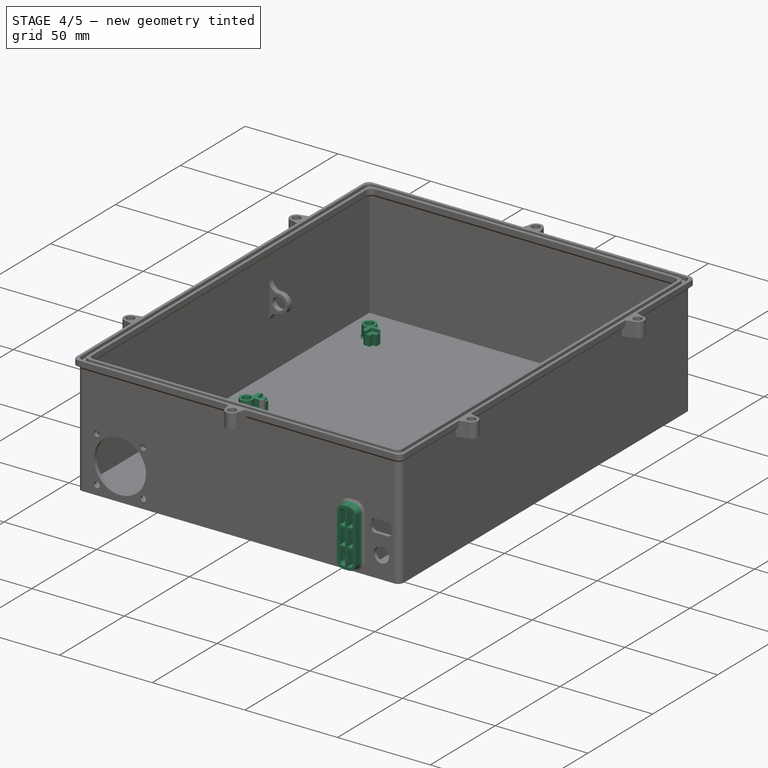
[diagram: stage 4 of 5 — iso view after this stage's code; geometry added in this stage tinted green]
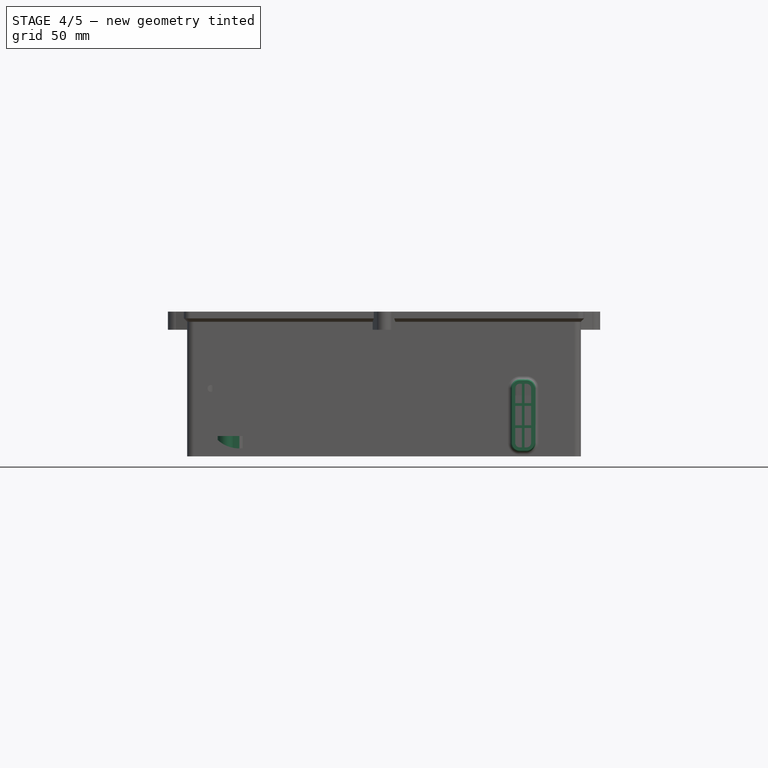
[diagram: stage 4 of 5 — front view after this stage's code; geometry added in this stage tinted green]
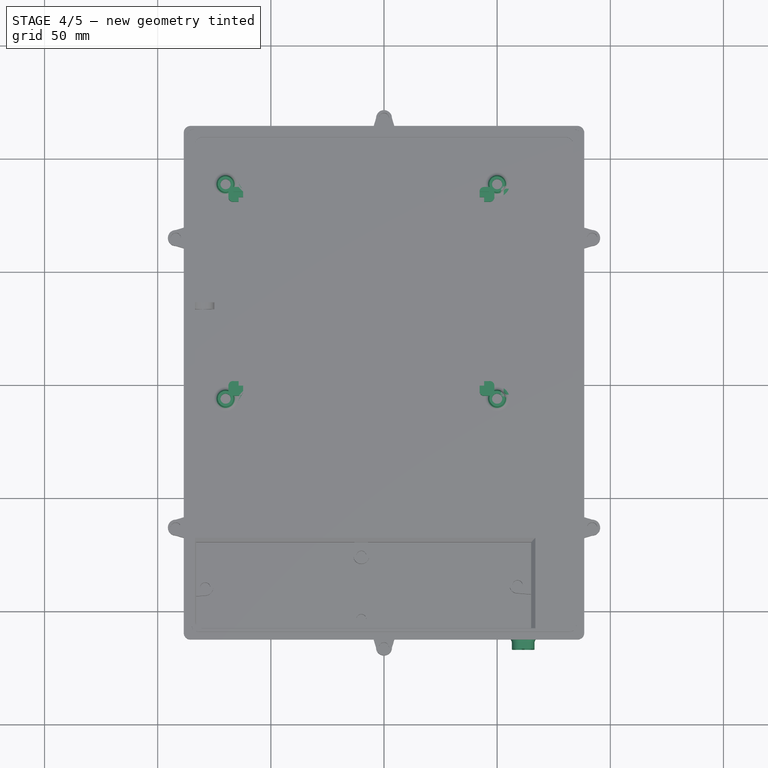
[diagram: stage 4 of 5 — top view after this stage's code; geometry added in this stage tinted green]
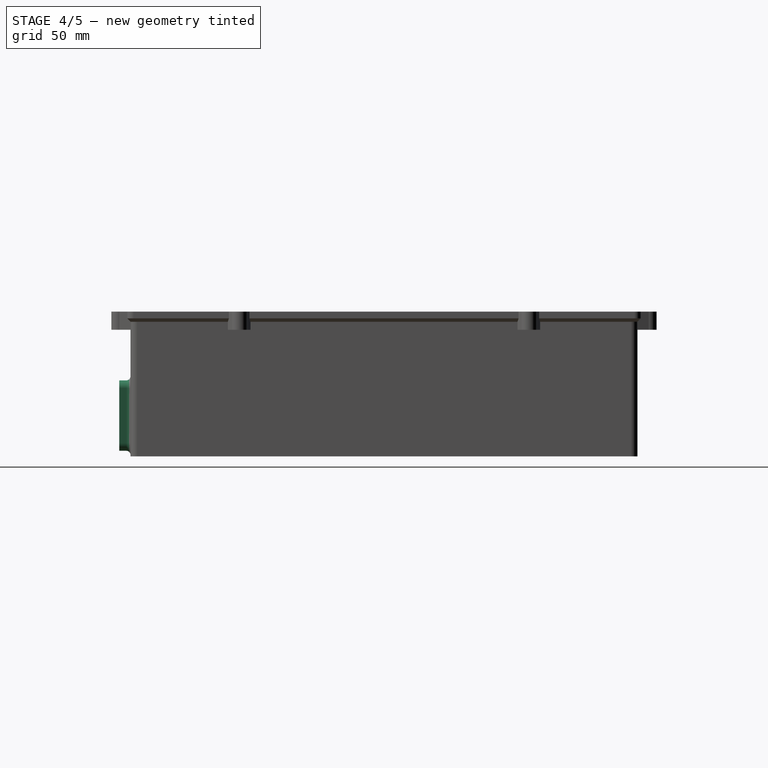
[diagram: stage 4 of 5 — right view after this stage's code; geometry added in this stage tinted green]
FEATURE [PartDesign::Chamfer] Chamfer003
  Angle = 45
  Base = -> Pocket009 [Edge95,Edge96,Edge97,Edge98,Edge99]
  BaseFeature = -> Pocket009
  ChamferType = 0
  FlipDirection = false
  Size = 1.5
  Size2 = 1
  SupportTransform = false
  UseAllEdges = false
FEATURE [Sketcher::SketchObject] Sketch021
  ExternalGeometry = -> [Chamfer003]
  FullyConstrained = true
  MapMode = 5
  Placement = pos=(0,-112,0) rot=(1,0,0;1.5708rad)
  Support = -> [Chamfer003]
  sketch-geometry (10):
    g0: ArcOfCircle CenterX=60 CenterY=30.1 CenterZ=0 NormalX=0 NormalY=0 NormalZ=1 AngleXU=0 Radius=2 StartAngle=1.5708 EndAngle=3.14159
    g1: LineSegment StartX=60 StartY=32.1 StartZ=0 EndX=63 EndY=32.1 EndZ=0
    g2: ArcOfCircle CenterX=63 CenterY=30.1 CenterZ=0 NormalX=0 NormalY=0 NormalZ=1 AngleXU=0 Radius=2 StartAngle=0 EndAngle=1.5708
    g3: LineSegment StartX=65 StartY=30.1 StartZ=0 EndX=65 EndY=6 EndZ=0
    g4: ArcOfCircle CenterX=63 CenterY=6 CenterZ=0 NormalX=0 NormalY=0 NormalZ=1 AngleXU=0 Radius=2 StartAngle=4.71239 EndAngle=6.28319
    g5: LineSegment StartX=63 StartY=4 StartZ=0 EndX=60 EndY=4 EndZ=0
    g6: ArcOfCircle CenterX=60 CenterY=6 CenterZ=0 NormalX=0 NormalY=0 NormalZ=1 AngleXU=0 Radius=2 StartAngle=3.14159 EndAngle=4.71239
    g7: LineSegment StartX=58 StartY=6 StartZ=0 EndX=58 EndY=30.1 EndZ=0
    g8: GeomPoint X=58 Y=32.1 Z=0
    g9: GeomPoint X=65 Y=2 Z=0
  constraints (23):
    c: Tangent(g0,g1) = 1.5708
    c: Tangent(g1,g2) = 1.5708
    c: Tangent(g2,g3) = 1.5708
    c: Tangent(g3,g4) = 1.5708
    c: Tangent(g4,g5) = 1.5708
    c: Tangent(g5,g6) = 1.5708
    c: Tangent(g6,g7) = 1.5708
    c: Tangent(g7,g0) = 1.5708
    c: Horizontal(g1)
    c: Horizontal(g5)
    c: Vertical(g3)
    c: Vertical(g7)
    c: Equal(g0,g2)
    c: Equal(g2,g4)
    c: Equal(g4,g6)
    c: PointOnObject(g8,g1)
    c: PointOnObject(g8,g7)
    c: Coincident(g9,g-3)
    c: DistanceY(g2,g1) = 2
    c: DistanceY(g1,g-3) = 3
    c: DistanceX(g6,g3) = 7
    c: PointOnObject(g3,g-3)
    c: DistanceY(g9,g4) = 2
FEATURE [PartDesign::Pocket] Pocket010
  BaseFeature = -> Chamfer003
  Direction = (0,1,-2e-16)
  Length = 2
  Length2 = 5
  Profile = -> Sketch021
  ReferenceAxis = -> Sketch021 [N_Axis]
  Type = 0
FEATURE [Sketcher::SketchObject] Sketch022
  ExternalGeometry = -> [Pocket010]
  FullyConstrained = true
  MapMode = 5
  Placement = pos=(0,-112,0) rot=(1,0,0;1.5708rad)
  Support = -> [Pocket010]
  sketch-geometry (24):
    g0: ArcOfCircle CenterX=60 CenterY=30.1 CenterZ=0 NormalX=0 NormalY=0 NormalZ=1 AngleXU=0 Radius=2 StartAngle=1.5708 EndAngle=3.14159
    g1: ArcOfCircle CenterX=63 CenterY=30.1 CenterZ=0 NormalX=0 NormalY=0 NormalZ=1 AngleXU=0 Radius=2 StartAngle=-9e-16 EndAngle=1.5708
    g2: ArcOfCircle CenterX=63 CenterY=6 CenterZ=0 NormalX=0 NormalY=0 NormalZ=1 AngleXU=0 Radius=2 StartAngle=4.71239 EndAngle=6.28319
    g3: ArcOfCircle CenterX=60 CenterY=6 CenterZ=0 NormalX=0 NormalY=0 NormalZ=1 AngleXU=0 Radius=2 StartAngle=3.14159 EndAngle=4.71239
    g4: ArcOfCircle CenterX=60 CenterY=30.1 CenterZ=0 NormalX=0 NormalY=0 NormalZ=1 AngleXU=0 Radius=3.5 StartAngle=1.5708 EndAngle=3.14159
    g5: ArcOfCircle CenterX=63 CenterY=30.1 CenterZ=0 NormalX=0 NormalY=0 NormalZ=1 AngleXU=0 Radius=3.5 StartAngle=0 EndAngle=1.5708
    g6: ArcOfCircle CenterX=63 CenterY=6 CenterZ=0 NormalX=0 NormalY=0 NormalZ=1 AngleXU=0 Radius=3.5 StartAngle=4.71239 EndAngle=6.28319
    g7: ArcOfCircle CenterX=60 CenterY=6 CenterZ=0 NormalX=0 NormalY=0 NormalZ=1 AngleXU=0 Radius=3.5 StartAngle=3.14159 EndAngle=4.71239
    g8: LineSegment StartX=60 StartY=33.6 StartZ=0 EndX=63 EndY=33.6 EndZ=0
    g9: LineSegment StartX=66.5 StartY=30.1 StartZ=0 EndX=66.5 EndY=6 EndZ=0
    g10: LineSegment StartX=63 StartY=2.5 StartZ=0 EndX=60 EndY=2.5 EndZ=0
    g11: LineSegment StartX=56.5 StartY=6 StartZ=0 EndX=56.5 EndY=30.1 EndZ=0
    g12: LineSegment StartX=56.5 StartY=30.1 StartZ=0 EndX=60 EndY=30.1 EndZ=0
    g13: LineSegment StartX=60 StartY=33.6 StartZ=0 EndX=60 EndY=30.1 EndZ=0
    g14: LineSegment StartX=63 StartY=30.1 StartZ=0 EndX=66.5 EndY=30.1 EndZ=0
    g15: LineSegment StartX=63 StartY=30.1 StartZ=0 EndX=63 EndY=33.6 EndZ=0
    g16: LineSegment StartX=66.5 StartY=6 StartZ=0 EndX=63 EndY=6 EndZ=0
    g17: LineSegment StartX=63 StartY=6 StartZ=0 EndX=63 EndY=2.5 EndZ=0
    g18: LineSegment StartX=60 StartY=2.5 StartZ=0 EndX=60 EndY=6 EndZ=0
    g19: LineSegment StartX=60 StartY=6 StartZ=0 EndX=56.5 EndY=6 EndZ=0
    g20: LineSegment StartX=60 StartY=32.1 StartZ=0 EndX=63 EndY=32.1 EndZ=0
    g21: LineSegment StartX=65 StartY=30.1 StartZ=0 EndX=65 EndY=6 EndZ=0
    g22: LineSegment StartX=63 StartY=4 StartZ=0 EndX=60 EndY=4 EndZ=0
    g23: LineSegment StartX=58 StartY=6 StartZ=0 EndX=58 EndY=30.1 EndZ=0
  constraints (63):
    c: Coincident(g0,g-4)
    c: Coincident(g0,g-5)
    c: Coincident(g0,g-4)
    c: Coincident(g1,g-6)
    c: Coincident(g1,g-6)
    c: Coincident(g1,g-7)
    c: Coincident(g2,g-8)
    c: Coincident(g2,g-8)
    c: Coincident(g2,g-9)
    c: Coincident(g3,g-10)
    c: Coincident(g3,g-10)
    c: Coincident(g3,g-10)
    c: Coincident(g4,g0)
    c: Coincident(g5,g1)
    c: Coincident(g6,g2)
    c: Coincident(g7,g3)
    c: Coincident(g8,g4)
    c: Coincident(g8,g5)
    c: Coincident(g9,g5)
    c: Coincident(g9,g6)
    c: Vertical(g9)
    c: Coincident(g10,g6)
    c: Coincident(g10,g7)
    c: Coincident(g11,g7)
    c: Coincident(g11,g4)
    c: Vertical(g11)
    c: Horizontal(g8)
    c: Horizontal(g10)
    c: Equal(g8,g10)
    c: Equal(g9,g11)
    c: DistanceY(g0,g4) = 1.5
    c: Coincident(g12,g4)
    c: Coincident(g12,g0)
    c: Coincident(g13,g4)
    c: Coincident(g13,g0)
    c: Vertical(g13)
    c: Coincident(g14,g1)
    c: Coincident(g14,g5)
    c: Coincident(g15,g1)
    c: Coincident(g15,g5)
    c: Coincident(g16,g6)
    c: Coincident(g16,g2)
    c: Coincident(g17,g2)
    c: Coincident(g17,g6)
    c: Coincident(g18,g7)
    c: Coincident(g18,g3)
    c: Coincident(g19,g3)
    c: Coincident(g19,g7)
    c: Horizontal(g12)
    c: Horizontal(g14)
    c: Horizontal(g16)
    c: Horizontal(g19)
    c: Vertical(g17)
    c: Vertical(g18)
    c: Vertical(g15)
    c: Coincident(g20,g0)
    c: Coincident(g20,g1)
    c: Coincident(g21,g1)
    c: Coincident(g21,g2)
    c: Coincident(g22,g2)
    c: Coincident(g22,g3)
    c: Coincident(g23,g3)
    c: Coincident(g23,g0)
FEATURE [PartDesign::Pad] Pad011
  BaseFeature = -> Pocket010
  Direction = (0,-1,2e-16)
  Length = 5
  Length2 = 10
  Profile = -> Sketch022
  ReferenceAxis = -> Sketch022 [N_Axis]
  Type = 0
FEATURE [Sketcher::SketchObject] Sketch023
  ExternalGeometry = -> [Pad011]
  FullyConstrained = true
  MapMode = 5
  Placement = pos=(0,-117,1.29e-14) rot=(1,0,0;1.5708rad)
  Support = -> [Pad011]
  sketch-geometry (20):
    g0: LineSegment StartX=60.9 StartY=32.1 StartZ=0 EndX=62.1 EndY=32.1 EndZ=0
    g1: LineSegment StartX=62.1 StartY=32.1 StartZ=0 EndX=62.1 EndY=23.5333 EndZ=0
    g2: LineSegment StartX=62.1 StartY=23.5333 StartZ=0 EndX=65 EndY=23.5333 EndZ=0
    g3: LineSegment StartX=65 StartY=23.5333 StartZ=0 EndX=65 EndY=22.3333 EndZ=0
    g4: LineSegment StartX=65 StartY=22.3333 StartZ=0 EndX=62.1 EndY=22.3333 EndZ=0
    g5: LineSegment StartX=62.1 StartY=22.3333 StartZ=0 EndX=62.1 EndY=13.7667 EndZ=0
    g6: LineSegment StartX=62.1 StartY=13.7667 StartZ=0 EndX=65 EndY=13.7667 EndZ=0
    g7: LineSegment StartX=65 StartY=13.7667 StartZ=0 EndX=65 EndY=12.5667 EndZ=0
    g8: LineSegment StartX=65 StartY=12.5667 StartZ=0 EndX=62.1 EndY=12.5667 EndZ=0
    g9: LineSegment StartX=62.1 StartY=12.5667 StartZ=0 EndX=62.1 EndY=4 EndZ=0
    g10: LineSegment StartX=62.1 StartY=4 StartZ=0 EndX=60.9 EndY=4 EndZ=0
    g11: LineSegment StartX=60.9 StartY=4 StartZ=0 EndX=60.9 EndY=12.5667 EndZ=0
    g12: LineSegment StartX=60.9 StartY=12.5667 StartZ=0 EndX=58 EndY=12.5667 EndZ=0
    g13: LineSegment StartX=58 StartY=12.5667 StartZ=0 EndX=58 EndY=13.7667 EndZ=0
    g14: LineSegment StartX=58 StartY=13.7667 StartZ=0 EndX=60.9 EndY=13.7667 EndZ=0
    g15: LineSegment StartX=60.9 StartY=13.7667 StartZ=0 EndX=60.9 EndY=22.3333 EndZ=0
    g16: LineSegment StartX=60.9 StartY=22.3333 StartZ=0 EndX=58 EndY=22.3333 EndZ=0
    g17: LineSegment StartX=58 StartY=22.3333 StartZ=0 EndX=58 EndY=23.5333 EndZ=0
    g18: LineSegment StartX=58 StartY=23.5333 StartZ=0 EndX=60.9 EndY=23.5333 EndZ=0
    g19: LineSegment StartX=60.9 StartY=23.5333 StartZ=0 EndX=60.9 EndY=32.1 EndZ=0
  constraints (60):
    c: Horizontal(g0)
    c: Coincident(g0,g1)
    c: Coincident(g1,g2)
    c: Coincident(g2,g3)
    c: Coincident(g3,g4)
    c: Coincident(g4,g5)
    c: Vertical(g5)
    c: Coincident(g5,g6)
    c: Coincident(g6,g7)
    c: Vertical(g7)
    c: Coincident(g7,g8)
    c: Coincident(g8,g9)
    c: Coincident(g9,g10)
    c: Coincident(g10,g11)
    c: Coincident(g11,g12)
    c: Coincident(g12,g13)
    c: Coincident(g13,g14)
    c: Coincident(g14,g15)
    c: Coincident(g15,g16)
    c: Coincident(g16,g17)
    c: Coincident(g17,g18)
    c: Horizontal(g18)
    c: Coincident(g18,g19)
    c: Coincident(g19,g0)
    c: Vertical(g15)
    c: Vertical(g19)
    c: Vertical(g1)
    c: Vertical(g3)
    c: Vertical(g17)
    c: Vertical(g13)
    c: Vertical(g9)
    c: Vertical(g11)
    c: Horizontal(g6)
    c: Horizontal(g8)
    c: Horizontal(g10)
    c: Horizontal(g12)
    c: Horizontal(g14)
    c: Horizontal(g16)
    c: Horizontal(g2)
    c: Horizontal(g4)
    c: Equal(g19,g1)
    c: Equal(g1,g5)
    c: Equal(g5,g15)
    c: Equal(g15,g11)
    c: Equal(g11,g9)
    c: Equal(g6,g8)
    c: Equal(g8,g12)
    c: Equal(g12,g14)
    c: Equal(g14,g16)
    c: Equal(g16,g18)
    c: Equal(g18,g2)
    c: Equal(g2,g4)
    c: Equal(g7,g3)
    c: Equal(g3,g17)
    c: DistanceX(g0,g0) = 1.2
    c: Equal(g0,g7)
    c: PointOnObject(g0,g-3)
    c: PointOnObject(g9,g-6)
    c: PointOnObject(g6,g-5)
    c: PointOnObject(g17,g-4)
FEATURE [PartDesign::Pad] Pad012
  BaseFeature = -> Pad011
  Direction = (0,-1,2e-16)
  Length = 10
  Length2 = 10
  Profile = -> Sketch023
  ReferenceAxis = -> Sketch023 [N_Axis]
  Refine = true
  Reversed = true
  Type = 3
  UpToFace = -> Pad011 [Face7]
FEATURE [PartDesign::Fillet] Fillet006
  Base = -> Pad012 [Edge735,Edge745,Edge743,Edge29]
  BaseFeature = -> Pad012
  Radius = 1.9
  SupportTransform = false
  UseAllEdges = false
FEATURE [PartDesign::Fillet] Fillet007
  Base = -> Fillet006 [Edge220,Edge224,Edge228]
  BaseFeature = -> Fillet006
  Radius = 1
  SupportTransform = false
  UseAllEdges = false
FEATURE [Sketcher::SketchObject] Sketch024
  ExternalGeometry = -> [Fillet007]
  FullyConstrained = true
  MapMode = 5
  Placement = pos=(0,0,9) rot=(0,0,1;0rad)
  Support = -> [Fillet007]
  sketch-geometry (6):
    g0: GeomPoint X=1.6e-15 Y=41.35 Z=0
    g1: LineSegment StartX=71 StartY=-15.65 StartZ=0 EndX=71 EndY=98.35 EndZ=0
    g2: LineSegment StartX=71 StartY=98.35 StartZ=0 EndX=-71 EndY=98.35 EndZ=0
    g3: LineSegment StartX=-71 StartY=98.35 StartZ=0 EndX=-71 EndY=-15.65 EndZ=0
    g4: LineSegment StartX=-71 StartY=-15.65 StartZ=0 EndX=71 EndY=-15.65 EndZ=0
    g5: GeomPoint X=1.6e-15 Y=41.35 Z=0
  constraints (13):
    c: Symmetric(g-3,g-4,g0)
    c: Coincident(g1,g2)
    c: Coincident(g2,g3)
    c: Coincident(g3,g4)
    c: Coincident(g4,g1)
    c: Horizontal(g2)
    c: Horizontal(g4)
    c: Vertical(g1)
    c: Vertical(g3)
    c: Symmetric(g2,g1,g5)
    c: Coincident(g5,g0)
    c: DistanceX(g2,g2) = 142
    c: DistanceY(g3,g3) = 114
FEATURE [PartDesign::Pocket] Pocket011
  BaseFeature = -> Fillet007
  Direction = (0,0,-1)
  Length = 0
  Length2 = 5
  Profile = -> Sketch024
  ReferenceAxis = -> Sketch024 [N_Axis]
  Refine = true
  Type = 3
  UpToFace = -> Fillet007 [Face10]
FEATURE [Sketcher::SketchObject] Sketch025
  ExternalGeometry = -> [Pocket011]
  FullyConstrained = true
  MapMode = 5
  Placement = pos=(0,0,2) rot=(0,0,1;0rad)
  Support = -> [Pocket011]
  sketch-geometry (42):
    g0: LineSegment StartX=-66.25 StartY=-2.3 StartZ=0 EndX=-66.25 EndY=85 EndZ=0
    g1: LineSegment StartX=-66.25 StartY=85 StartZ=0 EndX=46.25 EndY=85 EndZ=0
    g2: LineSegment StartX=46.25 StartY=85 StartZ=0 EndX=46.25 EndY=-2.3 EndZ=0
    g3: LineSegment StartX=46.25 StartY=-2.3 StartZ=0 EndX=-66.25 EndY=-2.3 EndZ=0
    g4: GeomPoint X=-10 Y=41.35 Z=0
    g5: LineSegment StartX=-70 StartY=-6.05 StartZ=0 EndX=-70 EndY=88.75 EndZ=0
    g6: LineSegment StartX=-70 StartY=88.75 StartZ=0 EndX=50 EndY=88.75 EndZ=0
    g7: LineSegment StartX=50 StartY=88.75 StartZ=0 EndX=50 EndY=-6.05 EndZ=0
    g8: LineSegment StartX=50 StartY=-6.05 StartZ=0 EndX=-70 EndY=-6.05 EndZ=0
    g9: GeomPoint X=-10 Y=41.35 Z=0
    g10: Circle CenterX=50 CenterY=88.75 CenterZ=0 NormalX=0 NormalY=0 NormalZ=1 AngleXU=0 Radius=2.25
    g11: Circle CenterX=50 CenterY=-6.05 CenterZ=0 NormalX=0 NormalY=0 NormalZ=1 AngleXU=0 Radius=2.25
    g12: Circle CenterX=-70 CenterY=-6.05 CenterZ=0 NormalX=0 NormalY=0 NormalZ=1 AngleXU=0 Radius=2.25
    g13: Circle CenterX=-70 CenterY=88.75 CenterZ=0 NormalX=0 NormalY=0 NormalZ=1 AngleXU=0 Radius=2.25
    g14: ArcOfCircle CenterX=-70 CenterY=88.75 CenterZ=0 NormalX=0 NormalY=0 NormalZ=1 AngleXU=0 Radius=3.5 StartAngle=5.91798 EndAngle=11.3608
    g15: ArcOfCircle CenterX=-70 CenterY=-6.05 CenterZ=0 NormalX=0 NormalY=0 NormalZ=1 AngleXU=0 Radius=3.5 StartAngle=1.20559 EndAngle=6.64839
    g16: ArcOfCircle CenterX=50 CenterY=-6.05 CenterZ=0 NormalX=0 NormalY=0 NormalZ=1 AngleXU=0 Radius=3.5 StartAngle=2.77639 EndAngle=8.21919
    g17: ArcOfCircle CenterX=50 CenterY=88.75 CenterZ=0 NormalX=0 NormalY=0 NormalZ=1 AngleXU=0 Radius=3.5 StartAngle=4.34718 EndAngle=9.78999
    g18: LineSegment StartX=46.7308 StartY=87.5 StartZ=0 EndX=42.2308 EndY=87.5 EndZ=0
    g19: LineSegment StartX=42.2308 StartY=87.5 StartZ=0 EndX=42.2308 EndY=83 EndZ=0
    g20: LineSegment StartX=42.2308 StartY=83 StartZ=0 EndX=44.25 EndY=83 EndZ=0
    g21: LineSegment StartX=44.25 StartY=83 StartZ=0 EndX=44.25 EndY=80.9808 EndZ=0
    g22: LineSegment StartX=44.25 StartY=80.9808 StartZ=0 EndX=48.75 EndY=80.9808 EndZ=0
    g23: LineSegment StartX=48.75 StartY=80.9808 StartZ=0 EndX=48.75 EndY=85.4808 EndZ=0
    g24: LineSegment StartX=-66.7308 StartY=87.5 StartZ=0 EndX=-62.2308 EndY=87.5 EndZ=0
    g25: LineSegment StartX=-62.2308 StartY=87.5 StartZ=0 EndX=-62.2308 EndY=83 EndZ=0
    g26: LineSegment StartX=-62.2308 StartY=83 StartZ=0 EndX=-64.25 EndY=83 EndZ=0
    g27: LineSegment StartX=-64.25 StartY=83 StartZ=0 EndX=-64.25 EndY=80.9808 EndZ=0
    g28: LineSegment StartX=-64.25 StartY=80.9808 StartZ=0 EndX=-68.75 EndY=80.9808 EndZ=0
    g29: LineSegment StartX=-68.75 StartY=80.9808 StartZ=0 EndX=-68.75 EndY=85.4808 EndZ=0
    g30: LineSegment StartX=-66.7308 StartY=-4.8 StartZ=0 EndX=-62.2308 EndY=-4.8 EndZ=0
    g31: LineSegment StartX=-62.2308 StartY=-4.8 StartZ=0 EndX=-62.2308 EndY=-0.3 EndZ=0
    g32: LineSegment StartX=-62.2308 StartY=-0.3 StartZ=0 EndX=-64.25 EndY=-0.3 EndZ=0
    g33: LineSegment StartX=-64.25 StartY=-0.3 StartZ=0 EndX=-64.25 EndY=1.71917 EndZ=0
    g34: LineSegment StartX=-64.25 StartY=1.71917 StartZ=0 EndX=-68.75 EndY=1.71917 EndZ=0
    g35: LineSegment StartX=-68.75 StartY=1.71917 StartZ=0 EndX=-68.75 EndY=-2.78083 EndZ=0
    g36: LineSegment StartX=46.7308 StartY=-4.8 StartZ=0 EndX=42.2308 EndY=-4.8 EndZ=0
    g37: LineSegment StartX=42.2308 StartY=-4.8 StartZ=0 EndX=42.2308 EndY=-0.3 EndZ=0
    g38: LineSegment StartX=42.2308 StartY=-0.3 StartZ=0 EndX=44.25 EndY=-0.3 EndZ=0
    g39: LineSegment StartX=44.25 StartY=-0.3 StartZ=0 EndX=44.25 EndY=1.71917 EndZ=0
    g40: LineSegment StartX=44.25 StartY=1.71917 StartZ=0 EndX=48.75 EndY=1.71917 EndZ=0
    g41: LineSegment StartX=48.75 StartY=1.71917 StartZ=0 EndX=48.75 EndY=-2.78083 EndZ=0
  constraints (117):
    c: Coincident(g0,g1)
    c: Coincident(g1,g2)
    c: Coincident(g2,g3)
    c: Coincident(g3,g0)
    c: Horizontal(g1)
    c: Horizontal(g3)
    c: Vertical(g0)
    c: Vertical(g2)
    c: Symmetric(g1,g0,g4)
    c: Coincident(g5,g6)
    c: Coincident(g6,g7)
    c: Coincident(g7,g8)
    c: Coincident(g8,g5)
    c: Horizontal(g6)
    c: Horizontal(g8)
    c: Vertical(g5)
    c: Vertical(g7)
    c: Symmetric(g6,g5,g9)
    c: Coincident(g9,g4)
    c: DistanceX(g1,g1) = 112.5
    c: DistanceX(g6,g6) = 120
    c: DistanceY(g2,g2) = 87.3
    c: Coincident(g10,g6)
    c: Coincident(g11,g7)
    c: Coincident(g12,g5)
    c: Coincident(g13,g5)
    c: Equal(g10,g13)
    c: Equal(g13,g12)
    c: Equal(g12,g11)
    c: Diameter(g10) = 4.5
    c: DistanceX(g4,g-1) = 10
    c: Coincident(g14,g13)
    c: Coincident(g15,g12)
    c: Coincident(g16,g11)
    c: Coincident(g17,g10)
    c: Coincident(g17,g18)
    c: Coincident(g18,g19)
    c: Vertical(g19)
    c: Coincident(g19,g20)
    c: Coincident(g20,g21)
    c: Coincident(g21,g22)
    c: Horizontal(g22)
    c: Coincident(g22,g23)
    c: Coincident(g23,g17)
    c: Equal(g17,g14)
    c: Equal(g14,g15)
    c: Equal(g15,g16)
    c: Diameter(g17) = 7
    c: Vertical(g23)
    c: Vertical(g21)
    c: Horizontal(g20)
    c: Horizontal(g18)
    c: DistanceY(g1,g-4) = 25
    c: Equal(g22,g23)
    c: Equal(g23,g18)
    c: Equal(g18,g19)
    c: DistanceX(g22,g22) = 4.5
    c: DistanceX(g20,g1) = 2
    c: DistanceY(g20,g1) = 2
    c: Coincident(g14,g24)
    c: Coincident(g24,g25)
    c: Vertical(g25)
    c: Coincident(g25,g26)
    c: Horizontal(g26)
    c: Coincident(g26,g27)
    c: Coincident(g27,g28)
    c: Coincident(g28,g29)
    c: Coincident(g29,g14)
    c: Horizontal(g30)
    c: Coincident(g30,g31)
    c: Vertical(g31)
    c: Coincident(g31,g32)
    c: Horizontal(g32)
    c: Coincident(g32,g33)
    c: Vertical(g33)
    c: Coincident(g33,g34)
    c: Horizontal(g34)
    c: Coincident(g34,g35)
    c: Coincident(g35,g15)
    c: Vertical(g35)
    c: Horizontal(g36)
    c: Coincident(g36,g37)
    c: Vertical(g37)
    c: Coincident(g37,g38)
    c: Horizontal(g38)
    c: Coincident(g38,g39)
    c: Coincident(g39,g40)
    c: Horizontal(g40)
    c: Coincident(g40,g41)
    c: Coincident(g41,g16)
    c: Vertical(g41)
    c: Vertical(g39)
    c: Coincident(g36,g16)
    c: Coincident(g30,g15)
    c: Vertical(g29)
    c: Vertical(g27)
    c: Horizontal(g24)
    c: Horizontal(g28)
    c: Equal(g28,g29)
    c: Equal(g29,g24)
    c: Equal(g24,g25)
    c: Equal(g25,g35)
    c: Equal(g35,g34)
    c: Equal(g34,g31)
    c: Equal(g31,g30)
    c: Equal(g30,g36)
    c: Equal(g36,g37)
    c: Equal(g37,g40)
    c: Equal(g40,g41)
    c: Equal(g41,g22)
    c: DistanceX(g38,g2) = 2
    c: DistanceY(g2,g38) = 2
    c: DistanceY(g0,g32) = 2
    c: DistanceX(g0,g32) = 2
    c: DistanceY(g26,g0) = 2
    c: DistanceX(g0,g26) = 2
    c: PointOnObject(g-3,g6)
FEATURE [PartDesign::Pad] Pad013
  BaseFeature = -> Pocket011
  Direction = (0,0,1)
  Length = 7
  Length2 = 10
  Profile = -> Sketch025
  ReferenceAxis = -> Sketch025 [N_Axis]
  Refine = true
  Type = 0
FEATURE [Sketcher::SketchObject] Sketch026
  ExternalGeometry = -> [Pad013]
  FullyConstrained = true
  MapMode = 5
  Placement = pos=(0,0,9) rot=(0,0,1;0rad)
  Support = -> [Pad013]
  sketch-geometry (6):
    g0: GeomPoint X=-10 Y=41.35 Z=0
    g1: LineSegment StartX=-66.5 StartY=-2.65 StartZ=0 EndX=-66.5 EndY=85.35 EndZ=0
    g2: LineSegment StartX=-66.5 StartY=85.35 StartZ=0 EndX=46.5 EndY=85.35 EndZ=0
    g3: LineSegment StartX=46.5 StartY=85.35 StartZ=0 EndX=46.5 EndY=-2.65 EndZ=0
    g4: LineSegment StartX=46.5 StartY=-2.65 StartZ=0 EndX=-66.5 EndY=-2.65 EndZ=0
    g5: GeomPoint X=-10 Y=41.35 Z=0
  constraints (13):
    c: Symmetric(g-3,g-4,g0)
    c: Coincident(g1,g2)
    c: Coincident(g2,g3)
    c: Coincident(g3,g4)
    c: Coincident(g4,g1)
    c: Horizontal(g2)
    c: Horizontal(g4)
    c: Vertical(g1)
    c: Vertical(g3)
    c: Symmetric(g2,g1,g5)
    c: Coincident(g5,g0)
    c: DistanceX(g2,g2) = 113
    c: DistanceY(g3,g3) = 88
FEATURE [PartDesign::Pocket] Pocket012
  BaseFeature = -> Pad013
  Direction = (0,0,-1)
  Length = 1.5
  Length2 = 5
  Profile = -> Sketch026
  ReferenceAxis = -> Sketch026 [N_Axis]
  Type = 0
FEATURE [PartDesign::Fillet] Fillet008
  Base = -> Pocket012 [Edge104,Edge331,Edge341,Edge367,Edge380,Edge121,Edge114,Edge349,Edge359,Edge138,Edge398,Edge385]
  BaseFeature = -> Pocket012
  Radius = 2
  SupportTransform = false
  UseAllEdges = false
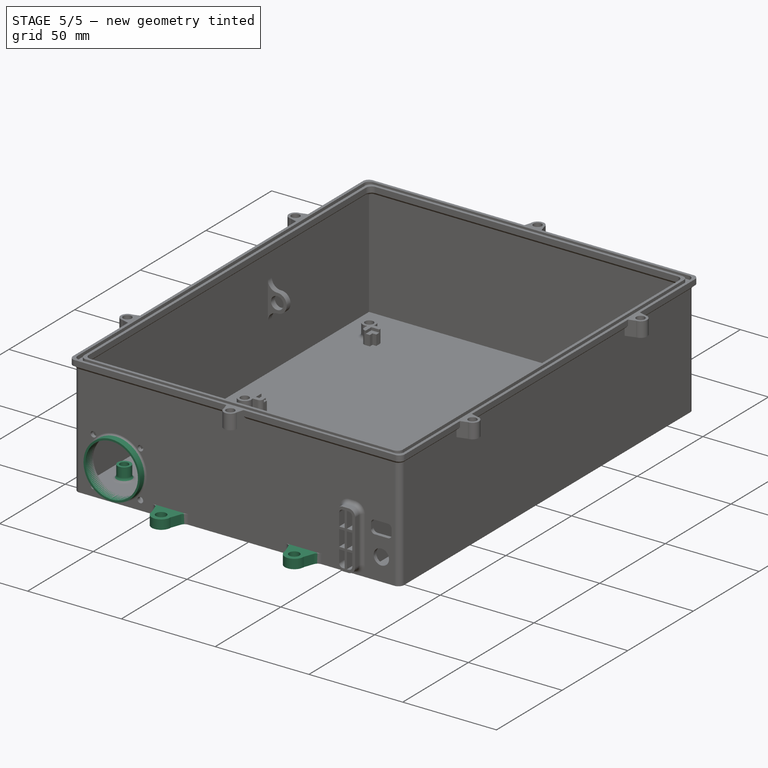
[diagram: stage 5 of 5 — iso view after this stage's code; geometry added in this stage tinted green]
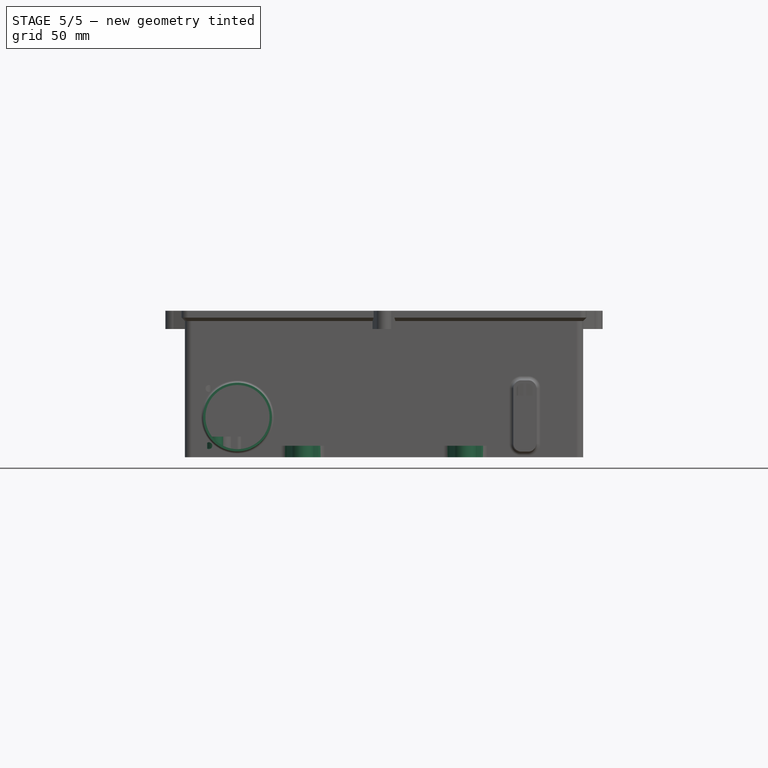
[diagram: stage 5 of 5 — front view after this stage's code; geometry added in this stage tinted green]
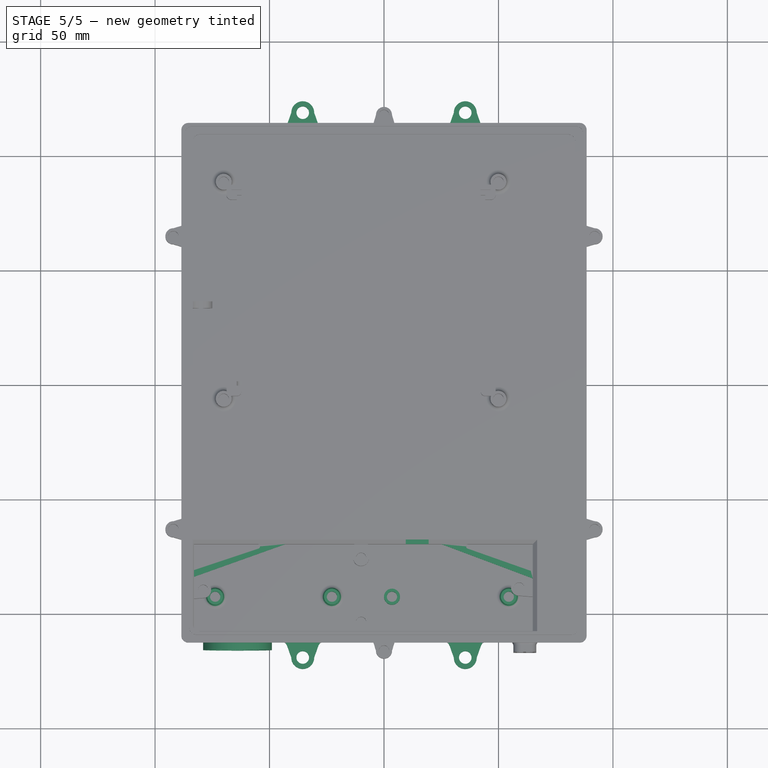
[diagram: stage 5 of 5 — top view after this stage's code; geometry added in this stage tinted green]
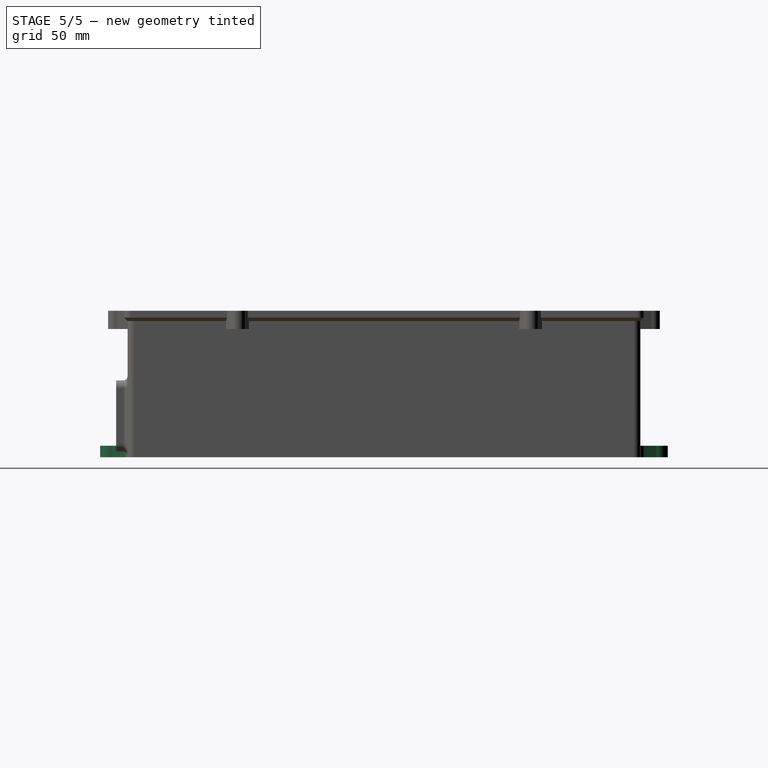
[diagram: stage 5 of 5 — right view after this stage's code; geometry added in this stage tinted green]
FEATURE [PartDesign::Fillet] Fillet009
  Base = -> Fillet008 [Edge24]
  BaseFeature = -> Fillet008
  Radius = 3
  SupportTransform = false
  UseAllEdges = false
FEATURE [Sketcher::SketchObject] Sketch027
  ExternalGeometry = -> [Fillet009]
  FullyConstrained = true
  MapMode = 5
  Placement = pos=(0,0,39) rot=(0,0,1;0rad)
  Support = -> [Fillet009]
  sketch-geometry (8):
    g0: LineSegment StartX=-85 StartY=-85 StartZ=0 EndX=-85 EndY=-82 EndZ=0
    g1: LineSegment StartX=-85 StartY=-82 StartZ=0 EndX=-49 EndY=-70 EndZ=0
    g2: LineSegment StartX=-49 StartY=-70 StartZ=0 EndX=-43 EndY=-70 EndZ=0
    g3: LineSegment StartX=-43 StartY=-70 StartZ=0 EndX=-85 EndY=-85 EndZ=0
    g4: LineSegment StartX=25 StartY=-70 StartZ=0 EndX=31 EndY=-70 EndZ=0
    g5: LineSegment StartX=31 StartY=-70 StartZ=0 EndX=65 EndY=-82 EndZ=0
    g6: LineSegment StartX=65 StartY=-82 StartZ=0 EndX=65 EndY=-85 EndZ=0
    g7: LineSegment StartX=65 StartY=-85 StartZ=0 EndX=25 EndY=-70 EndZ=0
  constraints (24):
    c: Vertical(g0)
    c: Coincident(g0,g1)
    c: Coincident(g1,g2)
    c: Horizontal(g2)
    c: Coincident(g2,g3)
    c: Coincident(g3,g0)
    c: PointOnObject(g2,g-4)
    c: PointOnObject(g0,g-3)
    c: DistanceX(g2,g2) = 6
    c: DistanceY(g0,g0) = 3
    c: DistanceX(g-4,g2) = 40
    c: DistanceY(g0,g-4) = 15
    c: PointOnObject(g4,g-4)
    c: PointOnObject(g4,g-4)
    c: Coincident(g4,g5)
    c: PointOnObject(g5,g-5)
    c: Coincident(g5,g6)
    c: PointOnObject(g6,g-5)
    c: Coincident(g6,g7)
    c: Coincident(g7,g4)
    c: DistanceY(g6,g6) = 3
    c: DistanceX(g4,g4) = 6
    c: DistanceX(g4,g-5) = 40
    c: DistanceY(g6,g-5) = 15
FEATURE [PartDesign::Pad] Pad014
  BaseFeature = -> Fillet009
  Direction = (0,0,1)
  Length = 6
  Length2 = -4
  Profile = -> Sketch027
  ReferenceAxis = -> Sketch027 [N_Axis]
  Reversed = true
  Type = 4
FEATURE [PartDesign::Fillet] Fillet010
  Base = -> Pad014 [Edge216,Edge371,Edge369,Edge150]
  BaseFeature = -> Pad014
  Radius = 1
  SupportTransform = false
  UseAllEdges = false
FEATURE [Sketcher::SketchObject] Sketch028
  ExternalGeometry = -> [Fillet010]
  FullyConstrained = true
  MapMode = 5
  Placement = pos=(0,-112,0) rot=(1,0,0;1.5708rad)
  Support = -> [Fillet010]
  sketch-geometry (2):
    g0: Circle CenterX=-64 CenterY=17.55 CenterZ=0 NormalX=0 NormalY=0 NormalZ=1 AngleXU=0 Radius=14
    g1: Circle CenterX=-64 CenterY=17.55 CenterZ=0 NormalX=0 NormalY=0 NormalZ=1 AngleXU=0 Radius=15
  constraints (4):
    c: Coincident(g0,g-4)
    c: PointOnObject(g-3,g0)
    c: Coincident(g1,g0)
    c: Diameter(g1) = 30
FEATURE [PartDesign::Pad] Pad015
  BaseFeature = -> Fillet010
  Direction = (0,-1,2e-16)
  Length = 4
  Length2 = 10
  Profile = -> Sketch028
  ReferenceAxis = -> Sketch028 [N_Axis]
  Type = 0
FEATURE [PartDesign::Fillet] Fillet011
  Base = -> Pad015 [Edge538]
  BaseFeature = -> Pad015
  Radius = 1
  Refine = true
  SupportTransform = false
  UseAllEdges = false
FEATURE [Sketcher::SketchObject] Sketch029
  ExternalGeometry = -> [Fillet011]
  FullyConstrained = true
  MapMode = 5
  Placement = pos=(0,0,2) rot=(0,0,1;0rad)
  Support = -> [Fillet011]
  sketch-geometry (14):
    g0: Circle CenterX=-73.75 CenterY=-92.5 CenterZ=0 NormalX=0 NormalY=0 NormalZ=1 AngleXU=0 Radius=3.5
    g1: Circle CenterX=-73.75 CenterY=-92.5 CenterZ=0 NormalX=0 NormalY=0 NormalZ=1 AngleXU=0 Radius=2.25
    g2: Circle CenterX=-22.75 CenterY=-92.5 CenterZ=0 NormalX=0 NormalY=0 NormalZ=1 AngleXU=0 Radius=3.5
    g3: Circle CenterX=-22.75 CenterY=-92.5 CenterZ=0 NormalX=0 NormalY=0 NormalZ=1 AngleXU=0 Radius=2.25
    g4: LineSegment StartX=-73.75 StartY=-92.5 StartZ=0 EndX=-22.75 EndY=-92.5 EndZ=0
    g5: LineSegment StartX=-85 StartY=-69.5 StartZ=0 EndX=-13 EndY=-69.5 EndZ=0
    g6: LineSegment StartX=-48.25 StartY=-69.5 StartZ=0 EndX=-48.25 EndY=-92.5 EndZ=0
    g7: Circle CenterX=3.5 CenterY=-92.5 CenterZ=0 NormalX=0 NormalY=0 NormalZ=1 AngleXU=0 Radius=3.5
    g8: Circle CenterX=3.5 CenterY=-92.5 CenterZ=0 NormalX=0 NormalY=0 NormalZ=1 AngleXU=0 Radius=2.25
    g9: Circle CenterX=54.5 CenterY=-92.5 CenterZ=0 NormalX=0 NormalY=0 NormalZ=1 AngleXU=0 Radius=3.5
    g10: Circle CenterX=54.5 CenterY=-92.5 CenterZ=0 NormalX=0 NormalY=0 NormalZ=1 AngleXU=0 Radius=2.25
    g11: LineSegment StartX=3.5 StartY=-92.5 StartZ=0 EndX=54.5 EndY=-92.5 EndZ=0
    g12: LineSegment StartX=29 StartY=-69.5 StartZ=0 EndX=29 EndY=-92.5 EndZ=0
    g13: LineSegment StartX=-7 StartY=-69.5 StartZ=0 EndX=65 EndY=-69.5 EndZ=0
  constraints (35):
    c: Coincident(g1,g0)
    c: Coincident(g3,g2)
    c: Equal(g0,g2)
    c: Diameter(g0) = 7
    c: Equal(g1,g3)
    c: Diameter(g1) = 4.5
    c: Coincident(g4,g0)
    c: Coincident(g4,g2)
    c: Horizontal(g4)
    c: DistanceX(g4,g4) = 51
    c: DistanceY(g0,g-3) = 2.5
    c: PointOnObject(g5,g-4)
    c: Coincident(g5,g-6)
    c: Horizontal(g5)
    c: Vertical(g6)
    c: Symmetric(g0,g2,g6)
    c: Coincident(g8,g7)
    c: Coincident(g10,g9)
    c: Equal(g7,g9)
    c: Equal(g0,g7) = 7
    c: Equal(g8,g10)
    c: Equal(g1,g8) = 4.5
    c: Coincident(g11,g7)
    c: Coincident(g11,g9)
    c: Horizontal(g11)
    c: Equal(g4,g11) = 51
    c: Vertical(g12)
    c: Symmetric(g7,g9,g12)
    c: Coincident(g13,g-7)
    c: Coincident(g13,g-8)
    c: Equal(g12,g6)
    c: Symmetric(g13,g13,g12)
    c: PointOnObject(g6,g5)
    c: DistanceX(g-5,g-5) = 73.5
    c: DistanceX(g-5,g6) = 36.75
FEATURE [PartDesign::Pad] Pad016
  BaseFeature = -> Fillet011
  Direction = (0,0,1)
  Length = 7
  Length2 = 10
  Profile = -> Sketch029
  ReferenceAxis = -> Sketch029 [N_Axis]
  Type = 0
FEATURE [PartDesign::Fillet] Fillet012
  Base = -> Pad016 [Edge429,Edge430,Edge442,Edge449]
  BaseFeature = -> Pad016
  Radius = 2
  SupportTransform = false
  UseAllEdges = false
FEATURE [Sketcher::SketchObject] Sketch030
  ExternalGeometry = -> [Fillet012]
  FullyConstrained = true
  MapMode = 5
  Placement = pos=(0,0,39) rot=(0,0,1;0rad)
  Support = -> [Fillet012]
  sketch-geometry (4):
    g0: LineSegment StartX=9.5 StartY=-68 StartZ=0 EndX=19.5 EndY=-68 EndZ=0
    g1: LineSegment StartX=19.5 StartY=-68 StartZ=0 EndX=19.5 EndY=-70 EndZ=0
    g2: LineSegment StartX=19.5 StartY=-70 StartZ=0 EndX=9.5 EndY=-70 EndZ=0
    g3: LineSegment StartX=9.5 StartY=-70 StartZ=0 EndX=9.5 EndY=-68 EndZ=0
  constraints (12):
    c: Coincident(g0,g1)
    c: Coincident(g1,g2)
    c: Coincident(g2,g3)
    c: Coincident(g3,g0)
    c: Horizontal(g0)
    c: Horizontal(g2)
    c: Vertical(g1)
    c: Vertical(g3)
    c: PointOnObject(g0,g-3)
    c: PointOnObject(g1,g-5)
    c: DistanceX(g0,g0) = 10
    c: DistanceX(g-4,g2) = 16
FEATURE [PartDesign::Pocket] Pocket013
  BaseFeature = -> Fillet012
  Direction = (0,0,-1)
  Length = 4
  Length2 = 5
  Profile = -> Sketch030
  ReferenceAxis = -> Sketch030 [N_Axis]
  Type = 0
FEATURE [Sketcher::SketchObject] Sketch031
  ExternalGeometry = -> [Pocket013]
  FullyConstrained = true
  MapMode = 5
  Placement = pos=(0,0,0) rot=(1,0,0;3.14159rad)
  Support = -> [Pocket013]
  sketch-geometry (25):
    g0: LineSegment StartX=-35.5 StartY=-119 StartZ=0 EndX=-35.5 EndY=119 EndZ=0
    g1: LineSegment StartX=-35.5 StartY=119 StartZ=0 EndX=35.5 EndY=119 EndZ=0
    g2: LineSegment StartX=35.5 StartY=119 StartZ=0 EndX=35.5 EndY=-119 EndZ=0
    g3: LineSegment StartX=35.5 StartY=-119 StartZ=0 EndX=-35.5 EndY=-119 EndZ=0
    g4: GeomPoint X=0 Y=0 Z=0
    g5: Circle CenterX=-35.5 CenterY=119 CenterZ=0 NormalX=0 NormalY=0 NormalZ=1 AngleXU=0 Radius=2.75
    g6: Circle CenterX=35.5 CenterY=119 CenterZ=0 NormalX=0 NormalY=0 NormalZ=1 AngleXU=0 Radius=2.75
    g7: Circle CenterX=35.5 CenterY=-119 CenterZ=0 NormalX=0 NormalY=0 NormalZ=1 AngleXU=0 Radius=2.75
    g8: Circle CenterX=-35.5 CenterY=-119 CenterZ=0 NormalX=0 NormalY=0 NormalZ=1 AngleXU=0 Radius=2.75
    g9: ArcOfCircle CenterX=-35.5 CenterY=119 CenterZ=0 NormalX=0 NormalY=0 NormalZ=1 AngleXU=0 Radius=5 StartAngle=-9e-16 EndAngle=3.14159
    g10: ArcOfCircle CenterX=35.5 CenterY=119 CenterZ=0 NormalX=0 NormalY=0 NormalZ=1 AngleXU=0 Radius=5 StartAngle=0 EndAngle=3.14159
    g11: ArcOfCircle CenterX=35.5 CenterY=-119 CenterZ=0 NormalX=0 NormalY=0 NormalZ=1 AngleXU=0 Radius=5 StartAngle=3.14159 EndAngle=6.28319
    g12: ArcOfCircle CenterX=-35.5 CenterY=-119 CenterZ=0 NormalX=0 NormalY=0 NormalZ=1 AngleXU=0 Radius=5 StartAngle=3.14159 EndAngle=6.28319
    g13: LineSegment StartX=-40.5 StartY=119 StartZ=0 EndX=-43 EndY=112 EndZ=0
    g14: LineSegment StartX=-43 StartY=112 StartZ=0 EndX=-28 EndY=112 EndZ=0
    g15: LineSegment StartX=-28 StartY=112 StartZ=0 EndX=-30.5 EndY=119 EndZ=0
    g16: LineSegment StartX=40.5 StartY=119 StartZ=0 EndX=43 EndY=112 EndZ=0
    g17: LineSegment StartX=43 StartY=112 StartZ=0 EndX=28 EndY=112 EndZ=0
    g18: LineSegment StartX=28 StartY=112 StartZ=0 EndX=30.5 EndY=119 EndZ=0
    g19: LineSegment StartX=40.5 StartY=-119 StartZ=0 EndX=43 EndY=-112 EndZ=0
    g20: LineSegment StartX=43 StartY=-112 StartZ=0 EndX=28 EndY=-112 EndZ=0
    g21: LineSegment StartX=28 StartY=-112 StartZ=0 EndX=30.5 EndY=-119 EndZ=0
    g22: LineSegment StartX=-30.5 StartY=-119 StartZ=0 EndX=-28 EndY=-112 EndZ=0
    g23: LineSegment StartX=-28 StartY=-112 StartZ=0 EndX=-43 EndY=-112 EndZ=0
    g24: LineSegment StartX=-43 StartY=-112 StartZ=0 EndX=-40.5 EndY=-119 EndZ=0
  constraints (68):
    c: Coincident(g0,g1)
    c: Coincident(g1,g2)
    c: Coincident(g2,g3)
    c: Coincident(g3,g0)
    c: Horizontal(g1)
    c: Horizontal(g3)
    c: Vertical(g0)
    c: Vertical(g2)
    c: Symmetric(g1,g0,g4)
    c: Coincident(g4,g-1)
    c: Coincident(g5,g0)
    c: Coincident(g6,g1)
    c: Coincident(g7,g2)
    c: Coincident(g8,g0)
    c: Equal(g5,g6)
    c: Equal(g5,g7)
    c: Equal(g5,g8)
    c: Diameter(g5) = 5.5
    c: Coincident(g9,g5)
    c: PointOnObject(g9,g1)
    c: Coincident(g10,g6)
    c: PointOnObject(g10,g1)
    c: Coincident(g11,g7)
    c: PointOnObject(g11,g3)
    c: Coincident(g12,g8)
    c: PointOnObject(g12,g3)
    c: PointOnObject(g12,g3)
    c: PointOnObject(g11,g3)
    c: PointOnObject(g10,g1)
    c: PointOnObject(g9,g1)
    c: PointOnObject(g13,g-3)
    c: Coincident(g13,g14)
    c: Horizontal(g14)
    c: Coincident(g14,g15)
    c: Coincident(g15,g9)
    c: PointOnObject(g16,g-3)
    c: Coincident(g16,g17)
    c: PointOnObject(g17,g-3)
    c: Coincident(g17,g18)
    c: Coincident(g18,g10)
    c: PointOnObject(g19,g-4)
    c: Coincident(g19,g20)
    c: PointOnObject(g20,g-4)
    c: Coincident(g20,g21)
    c: Coincident(g21,g11)
    c: PointOnObject(g22,g-4)
    c: Coincident(g22,g23)
    c: PointOnObject(g23,g-4)
    c: Coincident(g23,g24)
    c: Coincident(g24,g12)
    c: Coincident(g22,g12)
    c: Coincident(g19,g11)
    c: Coincident(g10,g16)
    c: Coincident(g9,g13)
    c: Equal(g15,g13)
    c: Equal(g18,g16)
    c: Equal(g19,g21)
    c: Equal(g22,g24)
    c: Equal(g23,g20)
    c: Equal(g20,g17)
    c: Equal(g17,g14)
    c: Equal(g9,g10)
    c: Equal(g10,g11)
    c: Equal(g11,g12)
    c: DistanceY(g13,g5) = 7
    c: Diameter(g9) = 10
    c: DistanceX(g14,g14) = 15
    c: DistanceX(g-5,g13) = 5
FEATURE [PartDesign::Pad] Pad017
  BaseFeature = -> Pocket013
  Direction = (0,0,-1)
  Length = 5
  Length2 = 10
  Profile = -> Sketch031
  ReferenceAxis = -> Sketch031 [N_Axis]
  Reversed = true
  Type = 0
FEATURE [PartDesign::Fillet] Fillet013
  Base = -> Pad017 [Edge805,Edge803,Edge808,Edge806,Edge635,Edge637,Edge639,Edge641]
  BaseFeature = -> Pad017
  Radius = 3
  SupportTransform = false
  UseAllEdges = false
FEATURE [PartDesign::Body] Body
  Group = -> [Sketch,Pad,Sketch001,Pocket,Sketch002,Pad001,Sketch003,Pocket001,Sketch004,Pad002,Sketch005,Pocket002,Fillet,Sketch006,Pad003,Sketch007,Pad004,Chamfer,Sketch008,Pad005,Sketch009,Pocket003,Fillet001,Sketch010,Pocket004,Sketch011,Pocket005,Sketch012,Pad006,Sketch013,Pad007,Chamfer001,Sketch014,Pocket006,Fillet002,Sketch015,Pad008,Fillet003,Chamfer002,Fillet004,Sketch016,Pad009,Sketch017,Pocket007,+38 more]
  Origin = -> Origin
  Tip = -> Fillet013
FEATURE [TechDraw::DrawSVGTemplate] Template
  EditableTexts = Designed_by_Name=Designed by Name; Drawing_number=Drawing number; FC-Date=Date; FC-SC=Scale; FC-SH=Sheet; FC-Title=Title; Subtitle=Subtitle; Weight=Weight
  Height = 210
  Orientation = 1
  Template = C:/Program Files/FreeCAD 0.21/data/Mod/TechDraw/Templates/A4_LandscapeTD.svg
  Width = 297
FEATURE [TechDraw::DrawViewPart] View
  CoarseView = false
  Direction = (0.397914,-0.423976,0.813578)
  Focus = 100
  HardHidden = false
  IsoCount = 0
  IsoHidden = false
  IsoVisible = false
  LockPosition = false
  Perspective = false
  Rotation = 0
  Scale = 0.75
  ScaleType = 2
  ScrubCount = 0
  SeamHidden = false
  SeamVisible = false
  SmoothHidden = false
  SmoothVisible = true
  Source = -> [Body]
  X = 149.071
  XDirection = (0.859632,0.482078,-0.169215)
  Y = 106.967
FEATURE [TechDraw::DrawPage] Page
  KeepUpdated = true
  NextBalloonIndex = 1
  ProjectionType = 0
  Template = -> Template
  Views = -> [View]
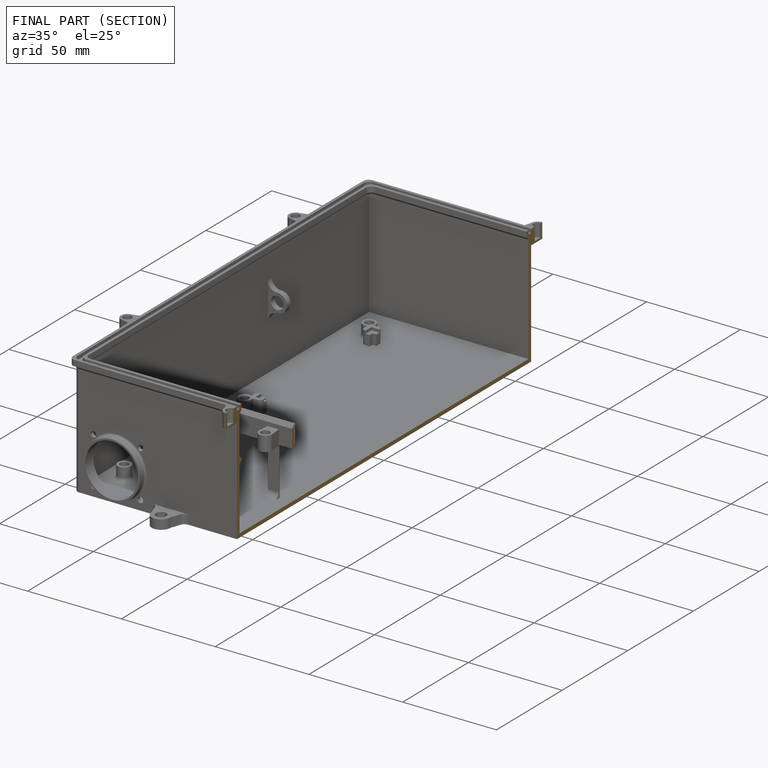
[diagram: finished part — half-section view (interior)]
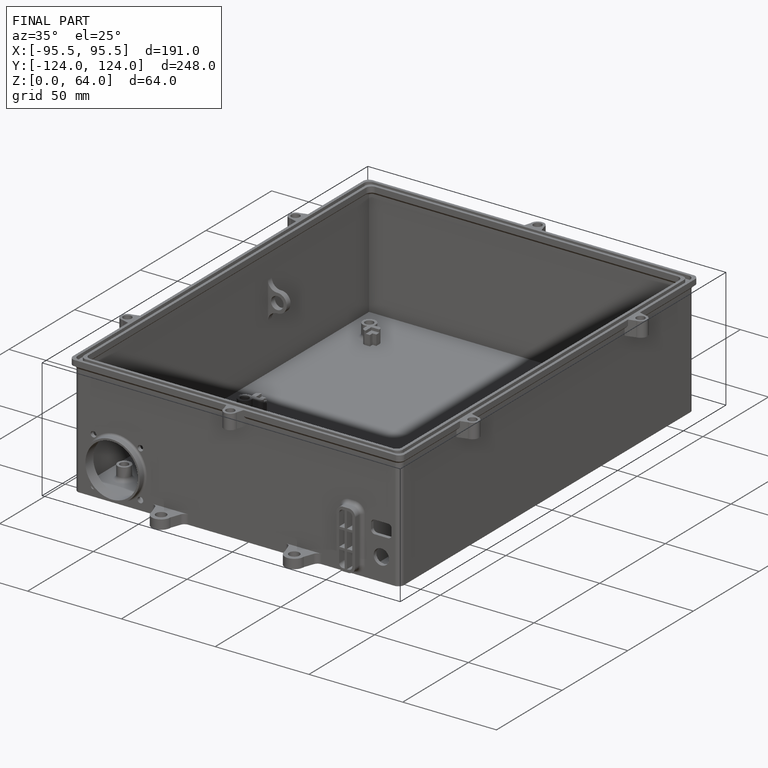
[diagram: finished part — iso view with bounding-box wireframe]
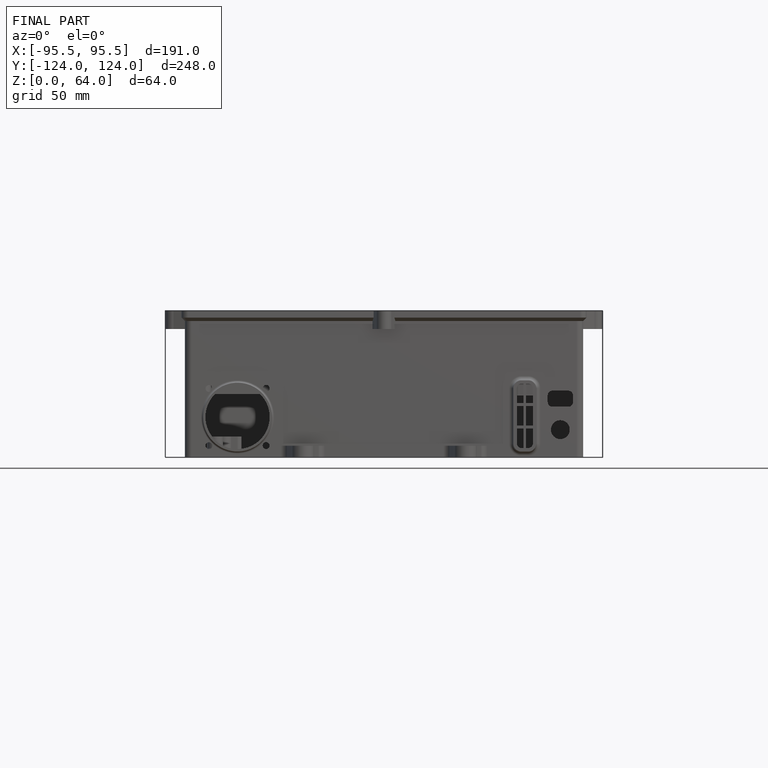
[diagram: finished part — front view with bounding-box wireframe]
